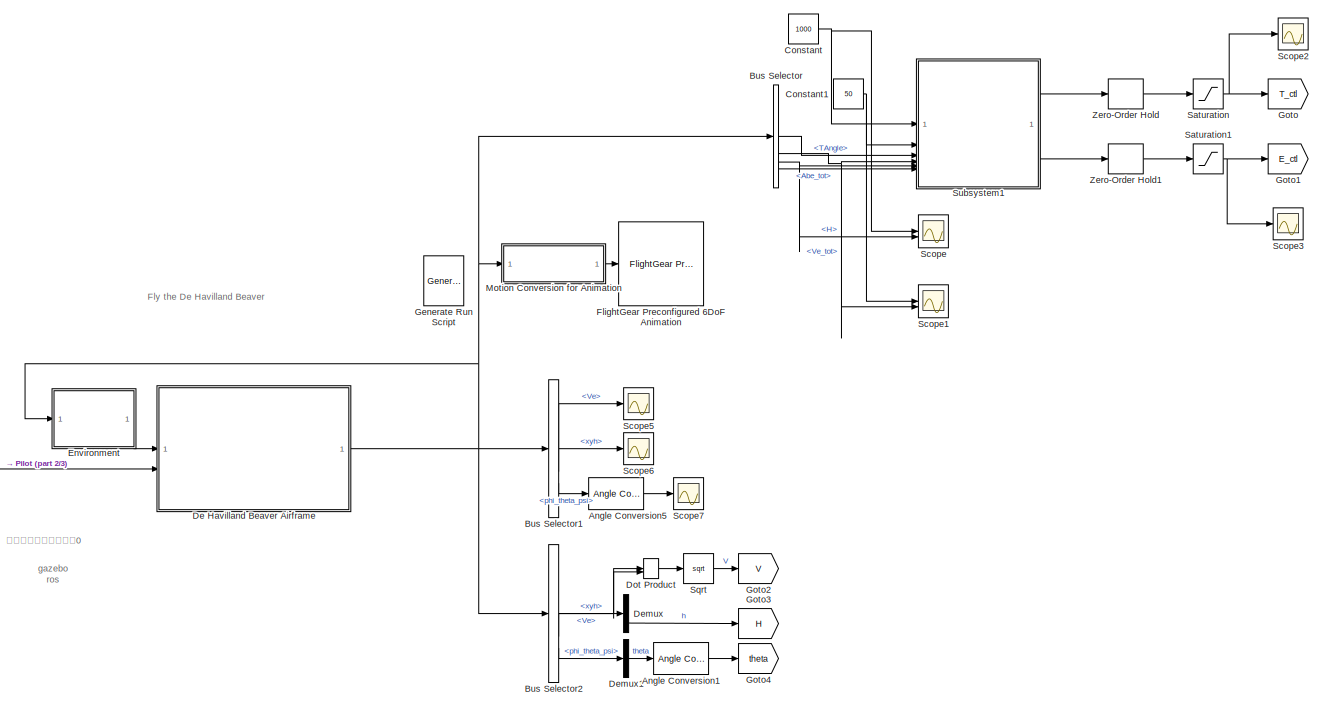
[diagram: root canvas - part 1/3, top right region]
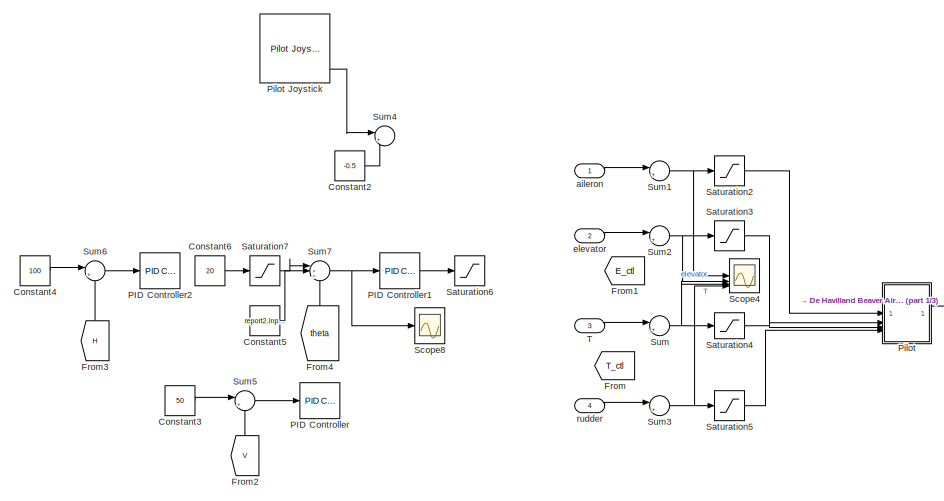
[diagram: root canvas - part 2/3, middle left region]
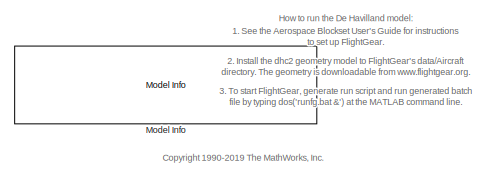
[diagram: root canvas - part 3/3, bottom center region]
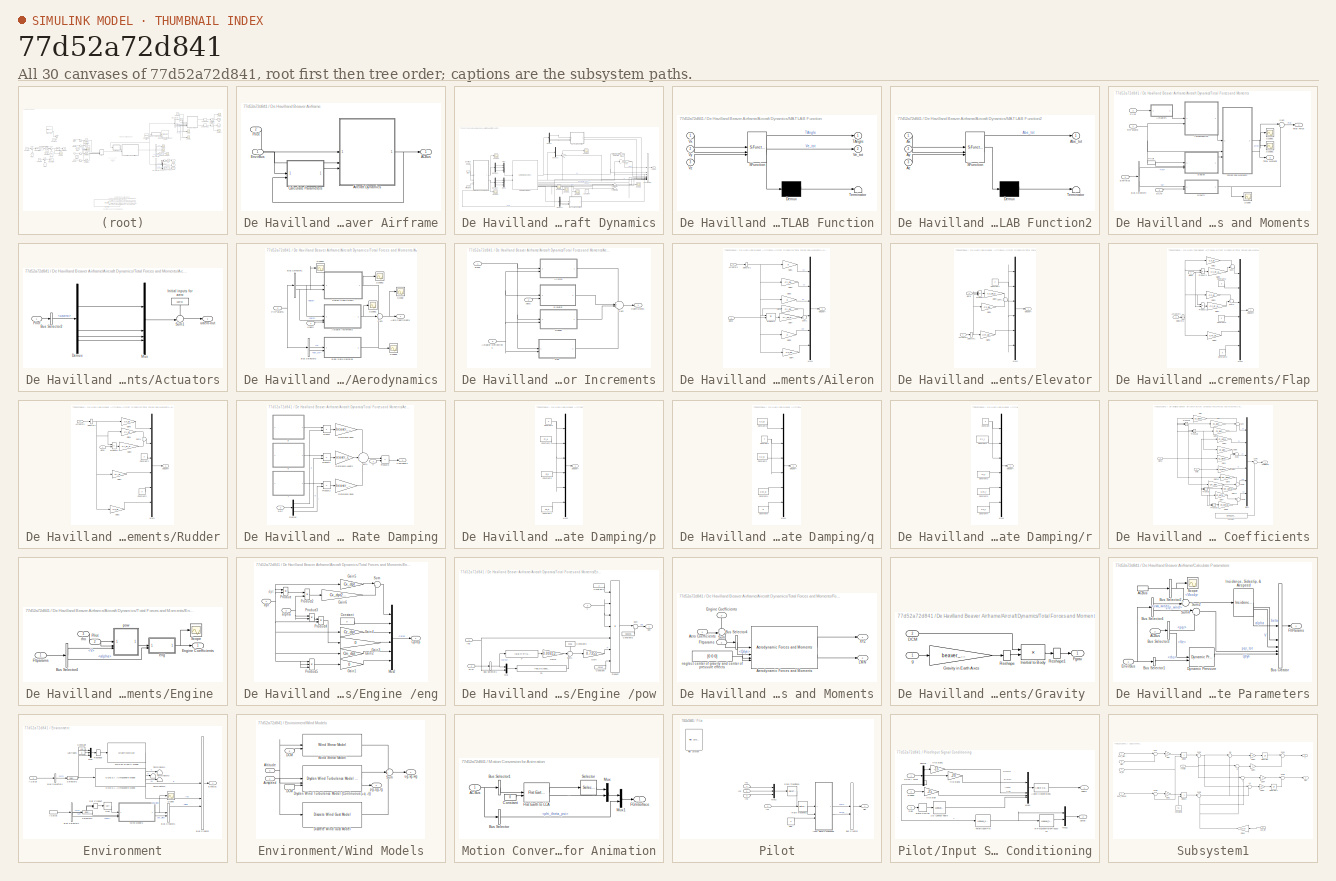
[diagram: thumbnail index - all 30 canvases of the model, root first then tree order]
MODEL slx_77d52a72d841
KIND model
CONFIG AbsTol = 1e-3
CONFIG EnableMultiTasking = on
CONFIG FixedStep = auto
CONFIG MaxStep = 1/30
CONFIG MinStep = auto
CONFIG PreLoadFcn = load asbdhc2_init;\n\n
CONFIG RelTol = 1e-2
CONFIG SampleTimeConstraint = Unconstrained
CONFIG SolverName = ode23
CONFIG StartTime = 0.0
CONFIG StopTime = 100
WORKSPACE source: mxarray member
WORKSPACE op_trim1: opcond.OperatingReport (value not decoded)
WORKSPACE op_trim2: opcond.OperatingReport (value not decoded)
WORKSPACE op_trim3: opcond.OperatingReport (value not decoded)
BLOCK [Reference] Angle Conversion1  REF=aerolibconvert2/Angle Conversion
  SourceBlock = aerolibconvert2/Angle Conversion
  SourceType = Angle Conversion
BLOCK [Reference] Angle Conversion5  REF=aerolibconvert2/Angle Conversion
  SourceBlock = aerolibconvert2/Angle Conversion
  SourceType = Angle Conversion
BLOCK [BusSelector] Bus Selector
  OutputSignals = TAngle,Ve_tot,H,Abe_tot
BLOCK [BusSelector] Bus Selector1
  OutputSignals = Ve,xyh,phi_theta_psi
BLOCK [BusSelector] Bus Selector2
  OutputSignals = Ve,xyh,phi_theta_psi
BLOCK [Constant] Constant
  Value = 1000
BLOCK [Constant] Constant1
  Value = 50
BLOCK [Constant] Constant2
  Value = -0.5
BLOCK [Constant] Constant3
  Value = 50
BLOCK [Constant] Constant4
  Value = 100
BLOCK [Constant] Constant5
  Value = report2.Inputs(2, 1).u
BLOCK [Constant] Constant6
  Value = 20
BLOCK [SubSystem] De Havilland Beaver Airframe
BLOCK [Outport] De Havilland Beaver Airframe/ACBus
  VectorParamsAs1DForOutWhenUnconnected = off
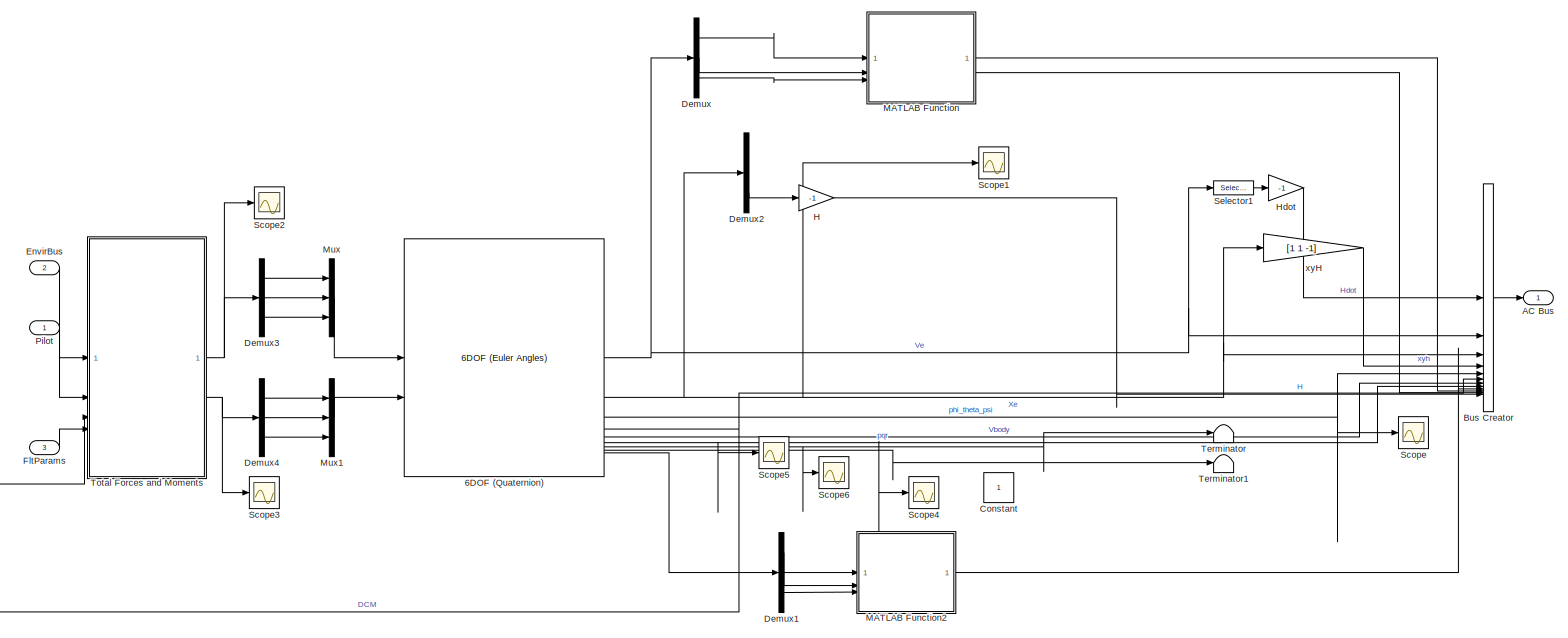
[diagram: De Havilland Beaver Airframe/Aircraft Dynamics - part 1/1, most of the canvas]
BLOCK [SubSystem] De Havilland Beaver Airframe/Aircraft Dynamics
BLOCK [Reference] De Havilland Beaver Airframe/Aircraft Dynamics/6DOF (Quaternion)  REF=shared6dof/6DOF (Euler Angles)
  SourceBlock = shared6dof/6DOF (Euler Angles)
  SourceType = 6DOF EoM (Body Axis)
BLOCK [Outport] De Havilland Beaver Airframe/Aircraft Dynamics/AC Bus
  VectorParamsAs1DForOutWhenUnconnected = off
BLOCK [BusCreator] De Havilland Beaver Airframe/Aircraft Dynamics/Bus Creator
  DisplayOption = bar
  InheritFromInputs = on
  Inputs = 12
BLOCK [Constant] De Havilland Beaver Airframe/Aircraft Dynamics/Constant
BLOCK [Demux] De Havilland Beaver Airframe/Aircraft Dynamics/Demux
  Outputs = 3
BLOCK [Demux] De Havilland Beaver Airframe/Aircraft Dynamics/Demux1
  Outputs = 3
BLOCK [Demux] De Havilland Beaver Airframe/Aircraft Dynamics/Demux2
  Outputs = 3
BLOCK [Demux] De Havilland Beaver Airframe/Aircraft Dynamics/Demux3
  Outputs = 3
BLOCK [Demux] De Havilland Beaver Airframe/Aircraft Dynamics/Demux4
  Outputs = 3
BLOCK [Inport] De Havilland Beaver Airframe/Aircraft Dynamics/EnvirBus
  Port = 2
BLOCK [Inport] De Havilland Beaver Airframe/Aircraft Dynamics/FltParams
  Port = 3
BLOCK [Gain] De Havilland Beaver Airframe/Aircraft Dynamics/H
  Gain = -1
  NameLocation = top
  OutDataTypeStr = Inherit: Same as input
  ParamDataTypeStr = Inherit: Same as input
  SaturateOnIntegerOverflow = on
BLOCK [Gain] De Havilland Beaver Airframe/Aircraft Dynamics/Hdot
  Gain = -1
  NameLocation = top
  OutDataTypeStr = Inherit: Same as input
  ParamDataTypeStr = Inherit: Same as input
  SaturateOnIntegerOverflow = on
BLOCK [SubSystem] De Havilland Beaver Airframe/Aircraft Dynamics/MATLAB Function
  ErrorFcn = Stateflow.Translate.translate
  LibrarySourceBlock = simulink/User-Defined\nFunctions/MATLAB Function
  PermitHierarchicalResolution = ExplicitOnly
  SFBlockType = MATLAB Function
  TreatAsAtomicUnit = on
BLOCK [Demux] De Havilland Beaver Airframe/Aircraft Dynamics/MATLAB Function/ Demux 
  Outputs = 1
BLOCK [S-Function] De Havilland Beaver Airframe/Aircraft Dynamics/MATLAB Function/ SFunction 
  EnableBusSupport = on
  FunctionName = sf_sfun
  PortCounts = [3 3]
  SFcnIsStateOwnerBlock = off
  SFunctionDeploymentMode = off
  Tag = Stateflow S-Function 2
BLOCK [Terminator] De Havilland Beaver Airframe/Aircraft Dynamics/MATLAB Function/ Terminator 
BLOCK [Outport] De Havilland Beaver Airframe/Aircraft Dynamics/MATLAB Function/TAngle
BLOCK [Outport] De Havilland Beaver Airframe/Aircraft Dynamics/MATLAB Function/Ve_tot
  Port = 2
BLOCK [Inport] De Havilland Beaver Airframe/Aircraft Dynamics/MATLAB Function/Vx
BLOCK [Inport] De Havilland Beaver Airframe/Aircraft Dynamics/MATLAB Function/Vy
  Port = 2
BLOCK [Inport] De Havilland Beaver Airframe/Aircraft Dynamics/MATLAB Function/Vz
  Port = 3
BLOCK [SubSystem] De Havilland Beaver Airframe/Aircraft Dynamics/MATLAB Function2
  ErrorFcn = Stateflow.Translate.translate
  LibrarySourceBlock = simulink/User-Defined\nFunctions/MATLAB Function
  PermitHierarchicalResolution = ExplicitOnly
  SFBlockType = MATLAB Function
  TreatAsAtomicUnit = on
BLOCK [Demux] De Havilland Beaver Airframe/Aircraft Dynamics/MATLAB Function2/ Demux 
  Outputs = 1
BLOCK [S-Function] De Havilland Beaver Airframe/Aircraft Dynamics/MATLAB Function2/ SFunction 
  EnableBusSupport = on
  FunctionName = sf_sfun
  PortCounts = [3 2]
  SFcnIsStateOwnerBlock = off
  SFunctionDeploymentMode = off
  Tag = Stateflow S-Function 8
BLOCK [Terminator] De Havilland Beaver Airframe/Aircraft Dynamics/MATLAB Function2/ Terminator 
BLOCK [Outport] De Havilland Beaver Airframe/Aircraft Dynamics/MATLAB Function2/Abe_tot
BLOCK [Inport] De Havilland Beaver Airframe/Aircraft Dynamics/MATLAB Function2/Ax
BLOCK [Inport] De Havilland Beaver Airframe/Aircraft Dynamics/MATLAB Function2/Ay
  Port = 2
BLOCK [Inport] De Havilland Beaver Airframe/Aircraft Dynamics/MATLAB Function2/Az
  Port = 3
BLOCK [Mux] De Havilland Beaver Airframe/Aircraft Dynamics/Mux
  DisplayOption = bar
  Inputs = 3
BLOCK [Mux] De Havilland Beaver Airframe/Aircraft Dynamics/Mux1
  DisplayOption = bar
  Inputs = 3
BLOCK [Inport] De Havilland Beaver Airframe/Aircraft Dynamics/Pilot
BLOCK [Scope] De Havilland Beaver Airframe/Aircraft Dynamics/Scope
  Floating = off
  NumInputPorts = 1
  ScopeSpecificationString = Simulink.scopes.TimeScopeBlockCfg('CurrentConfiguration', extmgr.ConfigurationSet(extmgr.Configuration('Core','General UI',true),extmgr.Configuration('Core','Source UI',true),extmgr.Configuration('Sources','WiredSimulink',true),extmgr.Configuration('Visuals','Time Domain',true,'SerializedDisplays',{struct('MinYLimReal','-0.46998','MaxYLimReal','0.12429','YLabelReal','','MinYLimMag','0.00000','MaxY...<+1502ch>
BLOCK [Scope] De Havilland Beaver Airframe/Aircraft Dynamics/Scope1
  Floating = off
  NumInputPorts = 1
  ScopeSpecificationString = Simulink.scopes.TimeScopeBlockCfg('CurrentConfiguration', extmgr.ConfigurationSet(extmgr.Configuration('Core','General UI',true),extmgr.Configuration('Core','Source UI',true),extmgr.Configuration('Sources','WiredSimulink',true,'DataLoggingVariableName','ScopeData3'),extmgr.Configuration('Visuals','Time Domain',true,'SerializedDisplays',{struct('MinYLimReal','-75.58065','MaxYLimReal','38.95217','YL...<+1466ch>
BLOCK [Scope] De Havilland Beaver Airframe/Aircraft Dynamics/Scope2
  Floating = off
  NumInputPorts = 1
  ScopeSpecificationString = Simulink.scopes.TimeScopeBlockCfg('CurrentConfiguration', extmgr.ConfigurationSet(extmgr.Configuration('Core','General UI',true),extmgr.Configuration('Core','Source UI',true),extmgr.Configuration('Sources','WiredSimulink',true,'DataLoggingVariableName','ScopeData1'),extmgr.Configuration('Visuals','Time Domain',true,'SerializedDisplays',{struct('MinYLimReal','-0.00581','MaxYLimReal','0.00188','YLab...<+1529ch>
BLOCK [Scope] De Havilland Beaver Airframe/Aircraft Dynamics/Scope3
  Floating = off
  NumInputPorts = 1
  ScopeSpecificationString = Simulink.scopes.TimeScopeBlockCfg('CurrentConfiguration', extmgr.ConfigurationSet(extmgr.Configuration('Core','General UI',true),extmgr.Configuration('Core','Source UI',true),extmgr.Configuration('Sources','WiredSimulink',true,'DataLoggingVariableName','ScopeData2'),extmgr.Configuration('Visuals','Time Domain',true,'SerializedDisplays',{struct('MinYLimReal','-37.1458','MaxYLimReal','19.87534','YLa...<+1463ch>
BLOCK [Scope] De Havilland Beaver Airframe/Aircraft Dynamics/Scope4
  Floating = off
  NumInputPorts = 1
  ScopeSpecificationString = Simulink.scopes.TimeScopeBlockCfg('CurrentConfiguration', extmgr.ConfigurationSet(extmgr.Configuration('Core','General UI',true),extmgr.Configuration('Core','Source UI',true),extmgr.Configuration('Sources','WiredSimulink',true,'DataLoggingVariableName','ScopeData8'),extmgr.Configuration('Visuals','Time Domain',true,'SerializedDisplays',{struct('MinYLimReal','-0.19051','MaxYLimReal','-0.18993','YLa...<+1460ch>
BLOCK [Scope] De Havilland Beaver Airframe/Aircraft Dynamics/Scope5
  Floating = off
  NumInputPorts = 1
  ScopeSpecificationString = Simulink.scopes.TimeScopeBlockCfg('CurrentConfiguration', extmgr.ConfigurationSet(extmgr.Configuration('Core','General UI',true),extmgr.Configuration('Core','Source UI',true),extmgr.Configuration('Sources','WiredSimulink',true,'DataLoggingVariableName','ScopeData9'),extmgr.Configuration('Visuals','Time Domain',true),extmgr.Configuration('Tools','Plot Navigation',true),extmgr.Configuration('Tools',...<+40ch>
BLOCK [Scope] De Havilland Beaver Airframe/Aircraft Dynamics/Scope6
  Floating = off
  NumInputPorts = 1
  ScopeSpecificationString = Simulink.scopes.TimeScopeBlockCfg('CurrentConfiguration', extmgr.ConfigurationSet(extmgr.Configuration('Core','General UI',true),extmgr.Configuration('Core','Source UI',true),extmgr.Configuration('Sources','WiredSimulink',true,'DataLoggingVariableName','ScopeData10'),extmgr.Configuration('Visuals','Time Domain',true,'SerializedDisplays',{struct('MinYLimReal','-0.04155','MaxYLimReal','0.08142','YLa...<+1571ch>
BLOCK [Selector] De Havilland Beaver Airframe/Aircraft Dynamics/Selector1
  IndexMode = Zero-based
  IndexOptions = Index vector (dialog)
  Indices = 2
  InputPortWidth = 3
  OutputSizes = 1
BLOCK [Terminator] De Havilland Beaver Airframe/Aircraft Dynamics/Terminator
BLOCK [Terminator] De Havilland Beaver Airframe/Aircraft Dynamics/Terminator1
BLOCK [SubSystem] De Havilland Beaver Airframe/Aircraft Dynamics/Total Forces and Moments
  NameLocation = top
BLOCK [SubSystem] De Havilland Beaver Airframe/Aircraft Dynamics/Total Forces and Moments/Actuators
BLOCK [BusSelector] De Havilland Beaver Airframe/Aircraft Dynamics/Total Forces and Moments/Actuators/Bus Selector2
  OutputSignals = uaero
BLOCK [Demux] De Havilland Beaver Airframe/Aircraft Dynamics/Total Forces and Moments/Actuators/Demux
BLOCK [Constant] De Havilland Beaver Airframe/Aircraft Dynamics/Total Forces and Moments/Actuators/Initial inputs for aero
  Commented = on
  NameLocation = left
  Value = uaero0
BLOCK [Mux] De Havilland Beaver Airframe/Aircraft Dynamics/Total Forces and Moments/Actuators/Mux
  DisplayOption = bar
BLOCK [Inport] De Havilland Beaver Airframe/Aircraft Dynamics/Total Forces and Moments/Actuators/Pilot
BLOCK [Sum] De Havilland Beaver Airframe/Aircraft Dynamics/Total Forces and Moments/Actuators/Sum1
  InputSameDT = on
  Inputs = ++|
  OutDataTypeStr = Inherit: Same as first input
  SaturateOnIntegerOverflow = on
BLOCK [Outport] De Havilland Beaver Airframe/Aircraft Dynamics/Total Forces and Moments/Actuators/uaero-out
  Unit = rad
  VectorParamsAs1DForOutWhenUnconnected = off
BLOCK [SubSystem] De Havilland Beaver Airframe/Aircraft Dynamics/Total Forces and Moments/Aerodynamics
BLOCK [SubSystem] De Havilland Beaver Airframe/Aircraft Dynamics/Total Forces and Moments/Aerodynamics/Actuator Increments
BLOCK [Inport] De Havilland Beaver Airframe/Aircraft Dynamics/Total Forces and Moments/Aerodynamics/Actuator Increments/Actuator Deflections
  Port = 3
  Unit = rad
BLOCK [SubSystem] De Havilland Beaver Airframe/Aircraft Dynamics/Total Forces and Moments/Aerodynamics/Actuator Increments/Aileron
BLOCK [Inport] De Havilland Beaver Airframe/Aircraft Dynamics/Total Forces and Moments/Aerodynamics/Actuator Increments/Aileron/Actuators
  Port = 2
  Unit = rad
BLOCK [Gain] De Havilland Beaver Airframe/Aircraft Dynamics/Total Forces and Moments/Aerodynamics/Actuator Increments/Aileron/Gain1
  Gain = 0
  OutDataTypeStr = Inherit: Same as input
  ParamDataTypeStr = Inherit: Same as input
  SaturateOnIntegerOverflow = on
BLOCK [Gain] De Havilland Beaver Airframe/Aircraft Dynamics/Total Forces and Moments/Aerodynamics/Actuator Increments/Aileron/Gain2
  Gain = Cy_da
  OutDataTypeStr = Inherit: Same as input
  ParamDataTypeStr = Inherit: Same as input
  SaturateOnIntegerOverflow = on
BLOCK [Gain] De Havilland Beaver Airframe/Aircraft Dynamics/Total Forces and Moments/Aerodynamics/Actuator Increments/Aileron/Gain3
  Gain = 0
  OutDataTypeStr = Inherit: Same as input
  ParamDataTypeStr = Inherit: Same as input
  SaturateOnIntegerOverflow = on
BLOCK [Gain] De Havilland Beaver Airframe/Aircraft Dynamics/Total Forces and Moments/Aerodynamics/Actuator Increments/Aileron/Gain4
  Gain = Cn_da
  OutDataTypeStr = Inherit: Same as input
  ParamDataTypeStr = Inherit: Same as input
  SaturateOnIntegerOverflow = on
BLOCK [Gain] De Havilland Beaver Airframe/Aircraft Dynamics/Total Forces and Moments/Aerodynamics/Actuator Increments/Aileron/Gain5
  Gain = 0
  OutDataTypeStr = Inherit: Same as input
  ParamDataTypeStr = Inherit: Same as input
  SaturateOnIntegerOverflow = on
BLOCK [Gain] De Havilland Beaver Airframe/Aircraft Dynamics/Total Forces and Moments/Aerodynamics/Actuator Increments/Aileron/Gain6
  Gain = Cl_da
  OutDataTypeStr = Inherit: Same as input
  ParamDataTypeStr = Inherit: Same as input
  SaturateOnIntegerOverflow = on
BLOCK [Gain] De Havilland Beaver Airframe/Aircraft Dynamics/Total Forces and Moments/Aerodynamics/Actuator Increments/Aileron/Gain7
  Gain = Cl_da_alpha
  OutDataTypeStr = Inherit: Same as input
  ParamDataTypeStr = Inherit: Same as input
  SaturateOnIntegerOverflow = on
BLOCK [Mux] De Havilland Beaver Airframe/Aircraft Dynamics/Total Forces and Moments/Aerodynamics/Actuator Increments/Aileron/Mux1
  Inputs = 6
BLOCK [Product] De Havilland Beaver Airframe/Aircraft Dynamics/Total Forces and Moments/Aerodynamics/Actuator Increments/Aileron/Product4
  InputSameDT = on
  OutDataTypeStr = Inherit: Same as first input
  SaturateOnIntegerOverflow = on
BLOCK [Selector] De Havilland Beaver Airframe/Aircraft Dynamics/Total Forces and Moments/Aerodynamics/Actuator Increments/Aileron/Selector1
  IndexMode = Zero-based
  IndexOptions = Index vector (dialog)
  Indices = 1
  InputPortWidth = 4
  OutputSizes = 1
BLOCK [Sum] De Havilland Beaver Airframe/Aircraft Dynamics/Total Forces and Moments/Aerodynamics/Actuator Increments/Aileron/Sum1
  Inputs = ++|
  SaturateOnIntegerOverflow = on
BLOCK [Inport] De Havilland Beaver Airframe/Aircraft Dynamics/Total Forces and Moments/Aerodynamics/Actuator Increments/Aileron/alpha
  Unit = rad
BLOCK [Outport] De Havilland Beaver Airframe/Aircraft Dynamics/Total Forces and Moments/Aerodynamics/Actuator Increments/Aileron/delCoeff
  VectorParamsAs1DForOutWhenUnconnected = off
BLOCK [Outport] De Havilland Beaver Airframe/Aircraft Dynamics/Total Forces and Moments/Aerodynamics/Actuator Increments/Coefficients
  VectorParamsAs1DForOutWhenUnconnected = off
BLOCK [SubSystem] De Havilland Beaver Airframe/Aircraft Dynamics/Total Forces and Moments/Aerodynamics/Actuator Increments/Elevator
BLOCK [Inport] De Havilland Beaver Airframe/Aircraft Dynamics/Total Forces and Moments/Aerodynamics/Actuator Increments/Elevator/Actuators
BLOCK [Inport] De Havilland Beaver Airframe/Aircraft Dynamics/Total Forces and Moments/Aerodynamics/Actuator Increments/Elevator/Beta
  Port = 2
  Unit = rad
BLOCK [Constant] De Havilland Beaver Airframe/Aircraft Dynamics/Total Forces and Moments/Aerodynamics/Actuator Increments/Elevator/Constant1
  Value = 0
BLOCK [Gain] De Havilland Beaver Airframe/Aircraft Dynamics/Total Forces and Moments/Aerodynamics/Actuator Increments/Elevator/Gain1
  Gain = Cz_de
  OutDataTypeStr = Inherit: Same as input
  ParamDataTypeStr = Inherit: Same as input
  SaturateOnIntegerOverflow = on
BLOCK [Gain] De Havilland Beaver Airframe/Aircraft Dynamics/Total Forces and Moments/Aerodynamics/Actuator Increments/Elevator/Gain2
  Gain = Cz_de_beta
  OutDataTypeStr = Inherit: Same as input
  ParamDataTypeStr = Inherit: Same as input
  SaturateOnIntegerOverflow = on
BLOCK [Gain] De Havilland Beaver Airframe/Aircraft Dynamics/Total Forces and Moments/Aerodynamics/Actuator Increments/Elevator/Gain3
  Gain = Cm_de
  OutDataTypeStr = Inherit: Same as input
  ParamDataTypeStr = Inherit: Same as input
  SaturateOnIntegerOverflow = on
BLOCK [Mux] De Havilland Beaver Airframe/Aircraft Dynamics/Total Forces and Moments/Aerodynamics/Actuator Increments/Elevator/Mux1
  Inputs = 6
BLOCK [Product] De Havilland Beaver Airframe/Aircraft Dynamics/Total Forces and Moments/Aerodynamics/Actuator Increments/Elevator/Product4
  InputSameDT = on
  Inputs = 3
  OutDataTypeStr = Inherit: Same as first input
  SaturateOnIntegerOverflow = on
BLOCK [Selector] De Havilland Beaver Airframe/Aircraft Dynamics/Total Forces and Moments/Aerodynamics/Actuator Increments/Elevator/Selector1
  IndexMode = Zero-based
  IndexOptions = Index vector (dialog)
  Indices = 0
  InputPortWidth = 4
  OutputSizes = 1
BLOCK [Sum] De Havilland Beaver Airframe/Aircraft Dynamics/Total Forces and Moments/Aerodynamics/Actuator Increments/Elevator/Sum1
  SaturateOnIntegerOverflow = on
BLOCK [Outport] De Havilland Beaver Airframe/Aircraft Dynamics/Total Forces and Moments/Aerodynamics/Actuator Increments/Elevator/delCoeff
  VectorParamsAs1DForOutWhenUnconnected = off
BLOCK [SubSystem] De Havilland Beaver Airframe/Aircraft Dynamics/Total Forces and Moments/Aerodynamics/Actuator Increments/Flap
BLOCK [Inport] De Havilland Beaver Airframe/Aircraft Dynamics/Total Forces and Moments/Aerodynamics/Actuator Increments/Flap/Actuators
  Port = 2
  Unit = rad
BLOCK [Inport] De Havilland Beaver Airframe/Aircraft Dynamics/Total Forces and Moments/Aerodynamics/Actuator Increments/Flap/Alpha
  Unit = rad
BLOCK [Constant] De Havilland Beaver Airframe/Aircraft Dynamics/Total Forces and Moments/Aerodynamics/Actuator Increments/Flap/Constant1
  Value = 0
BLOCK [Constant] De Havilland Beaver Airframe/Aircraft Dynamics/Total Forces and Moments/Aerodynamics/Actuator Increments/Flap/Constant2
  Value = 0
BLOCK [Constant] De Havilland Beaver Airframe/Aircraft Dynamics/Total Forces and Moments/Aerodynamics/Actuator Increments/Flap/Constant3
  Value = 0
BLOCK [Gain] De Havilland Beaver Airframe/Aircraft Dynamics/Total Forces and Moments/Aerodynamics/Actuator Increments/Flap/Gain1
  Gain = Cx_df
  OutDataTypeStr = Inherit: Same as input
  ParamDataTypeStr = Inherit: Same as input
  SaturateOnIntegerOverflow = on
BLOCK [Gain] De Havilland Beaver Airframe/Aircraft Dynamics/Total Forces and Moments/Aerodynamics/Actuator Increments/Flap/Gain2
  Gain = Cx_df_alpha
  OutDataTypeStr = Inherit: Same as input
  ParamDataTypeStr = Inherit: Same as input
  SaturateOnIntegerOverflow = on
BLOCK [Gain] De Havilland Beaver Airframe/Aircraft Dynamics/Total Forces and Moments/Aerodynamics/Actuator Increments/Flap/Gain3
  Gain = Cz_df
  OutDataTypeStr = Inherit: Same as input
  ParamDataTypeStr = Inherit: Same as input
  SaturateOnIntegerOverflow = on
BLOCK [Gain] De Havilland Beaver Airframe/Aircraft Dynamics/Total Forces and Moments/Aerodynamics/Actuator Increments/Flap/Gain4
  Gain = Cz_df_alpha
  OutDataTypeStr = Inherit: Same as input
  ParamDataTypeStr = Inherit: Same as input
  SaturateOnIntegerOverflow = on
BLOCK [Gain] De Havilland Beaver Airframe/Aircraft Dynamics/Total Forces and Moments/Aerodynamics/Actuator Increments/Flap/Gain5
  Gain = Cm_df
  OutDataTypeStr = Inherit: Same as input
  ParamDataTypeStr = Inherit: Same as input
  SaturateOnIntegerOverflow = on
BLOCK [Mux] De Havilland Beaver Airframe/Aircraft Dynamics/Total Forces and Moments/Aerodynamics/Actuator Increments/Flap/Mux1
  Inputs = 6
BLOCK [Product] De Havilland Beaver Airframe/Aircraft Dynamics/Total Forces and Moments/Aerodynamics/Actuator Increments/Flap/Product1
  InputSameDT = on
  OutDataTypeStr = Inherit: Same as first input
  SaturateOnIntegerOverflow = on
BLOCK [Product] De Havilland Beaver Airframe/Aircraft Dynamics/Total Forces and Moments/Aerodynamics/Actuator Increments/Flap/Product4
  InputSameDT = on
  OutDataTypeStr = Inherit: Same as first input
  SaturateOnIntegerOverflow = on
BLOCK [Selector] De Havilland Beaver Airframe/Aircraft Dynamics/Total Forces and Moments/Aerodynamics/Actuator Increments/Flap/Selector1
  IndexMode = Zero-based
  IndexOptions = Index vector (dialog)
  Indices = 3
  InputPortWidth = 4
  OutputSizes = 1
BLOCK [Sum] De Havilland Beaver Airframe/Aircraft Dynamics/Total Forces and Moments/Aerodynamics/Actuator Increments/Flap/Sum1
  SaturateOnIntegerOverflow = on
BLOCK [Sum] De Havilland Beaver Airframe/Aircraft Dynamics/Total Forces and Moments/Aerodynamics/Actuator Increments/Flap/Sum2
  SaturateOnIntegerOverflow = on
BLOCK [Outport] De Havilland Beaver Airframe/Aircraft Dynamics/Total Forces and Moments/Aerodynamics/Actuator Increments/Flap/delCoeff
  VectorParamsAs1DForOutWhenUnconnected = off
BLOCK [SubSystem] De Havilland Beaver Airframe/Aircraft Dynamics/Total Forces and Moments/Aerodynamics/Actuator Increments/Rudder
BLOCK [Inport] De Havilland Beaver Airframe/Aircraft Dynamics/Total Forces and Moments/Aerodynamics/Actuator Increments/Rudder/Actuators
  Port = 2
  Unit = rad
BLOCK [Inport] De Havilland Beaver Airframe/Aircraft Dynamics/Total Forces and Moments/Aerodynamics/Actuator Increments/Rudder/Alpha
  NameLocation = top
  Unit = rad
BLOCK [Constant] De Havilland Beaver Airframe/Aircraft Dynamics/Total Forces and Moments/Aerodynamics/Actuator Increments/Rudder/Constant1
  Value = 0
BLOCK [Constant] De Havilland Beaver Airframe/Aircraft Dynamics/Total Forces and Moments/Aerodynamics/Actuator Increments/Rudder/Constant2
  Value = 0
BLOCK [Gain] De Havilland Beaver Airframe/Aircraft Dynamics/Total Forces and Moments/Aerodynamics/Actuator Increments/Rudder/Gain1
  Gain = Cl_dr
  OutDataTypeStr = Inherit: Same as input
  ParamDataTypeStr = Inherit: Same as input
  SaturateOnIntegerOverflow = on
BLOCK [Gain] De Havilland Beaver Airframe/Aircraft Dynamics/Total Forces and Moments/Aerodynamics/Actuator Increments/Rudder/Gain2
  Gain = Cn_dr
  OutDataTypeStr = Inherit: Same as input
  ParamDataTypeStr = Inherit: Same as input
  SaturateOnIntegerOverflow = on
BLOCK [Gain] De Havilland Beaver Airframe/Aircraft Dynamics/Total Forces and Moments/Aerodynamics/Actuator Increments/Rudder/Gain3
  Gain = Cy_dr_alpha
  OutDataTypeStr = Inherit: Same as input
  ParamDataTypeStr = Inherit: Same as input
  SaturateOnIntegerOverflow = on
BLOCK [Gain] De Havilland Beaver Airframe/Aircraft Dynamics/Total Forces and Moments/Aerodynamics/Actuator Increments/Rudder/Gain4
  Gain = Cy_dr
  OutDataTypeStr = Inherit: Same as input
  ParamDataTypeStr = Inherit: Same as input
  SaturateOnIntegerOverflow = on
BLOCK [Gain] De Havilland Beaver Airframe/Aircraft Dynamics/Total Forces and Moments/Aerodynamics/Actuator Increments/Rudder/Gain5
  Gain = Cx_dr
  OutDataTypeStr = Inherit: Same as input
  ParamDataTypeStr = Inherit: Same as input
  SaturateOnIntegerOverflow = on
BLOCK [Mux] De Havilland Beaver Airframe/Aircraft Dynamics/Total Forces and Moments/Aerodynamics/Actuator Increments/Rudder/Mux1
  Inputs = 6
BLOCK [Product] De Havilland Beaver Airframe/Aircraft Dynamics/Total Forces and Moments/Aerodynamics/Actuator Increments/Rudder/Product1
  InputSameDT = on
  OutDataTypeStr = Inherit: Same as first input
  SaturateOnIntegerOverflow = on
BLOCK [Selector] De Havilland Beaver Airframe/Aircraft Dynamics/Total Forces and Moments/Aerodynamics/Actuator Increments/Rudder/Selector1
  IndexMode = Zero-based
  IndexOptions = Index vector (dialog)
  Indices = 2
  InputPortWidth = 4
  OutputSizes = 1
BLOCK [Sum] De Havilland Beaver Airframe/Aircraft Dynamics/Total Forces and Moments/Aerodynamics/Actuator Increments/Rudder/Sum1
  SaturateOnIntegerOverflow = on
BLOCK [Outport] De Havilland Beaver Airframe/Aircraft Dynamics/Total Forces and Moments/Aerodynamics/Actuator Increments/Rudder/delCoeff
  VectorParamsAs1DForOutWhenUnconnected = off
BLOCK [Sum] De Havilland Beaver Airframe/Aircraft Dynamics/Total Forces and Moments/Aerodynamics/Actuator Increments/Sum
  InputSameDT = on
  Inputs = ++++
  OutDataTypeStr = Inherit: Same as first input
  SaturateOnIntegerOverflow = on
BLOCK [Inport] De Havilland Beaver Airframe/Aircraft Dynamics/Total Forces and Moments/Aerodynamics/Actuator Increments/alpha
  Unit = rad
BLOCK [Inport] De Havilland Beaver Airframe/Aircraft Dynamics/Total Forces and Moments/Aerodynamics/Actuator Increments/beta
  Port = 2
  Unit = rad
BLOCK [Outport] De Havilland Beaver Airframe/Aircraft Dynamics/Total Forces and Moments/Aerodynamics/Aero Coefficients
  VectorParamsAs1DForOutWhenUnconnected = off
BLOCK [SubSystem] De Havilland Beaver Airframe/Aircraft Dynamics/Total Forces and Moments/Aerodynamics/Body Rate Damping
BLOCK [Outport] De Havilland Beaver Airframe/Aircraft Dynamics/Total Forces and Moments/Aerodynamics/Body Rate Damping/Coefficients
  VectorParamsAs1DForOutWhenUnconnected = off
BLOCK [Demux] De Havilland Beaver Airframe/Aircraft Dynamics/Total Forces and Moments/Aerodynamics/Body Rate Damping/Demux
  DisplayOption = none
  Outputs = 3
BLOCK [Product] De Havilland Beaver Airframe/Aircraft Dynamics/Total Forces and Moments/Aerodynamics/Body Rate Damping/Product
  InputSameDT = on
  OutDataTypeStr = Inherit: Same as first input
  SaturateOnIntegerOverflow = on
BLOCK [Product] De Havilland Beaver Airframe/Aircraft Dynamics/Total Forces and Moments/Aerodynamics/Body Rate Damping/Product1
  InputSameDT = on
  OutDataTypeStr = Inherit: Same as first input
  SaturateOnIntegerOverflow = on
BLOCK [Product] De Havilland Beaver Airframe/Aircraft Dynamics/Total Forces and Moments/Aerodynamics/Body Rate Damping/Product2
  InputSameDT = on
  OutDataTypeStr = Inherit: Same as first input
  SaturateOnIntegerOverflow = on
BLOCK [Product] De Havilland Beaver Airframe/Aircraft Dynamics/Total Forces and Moments/Aerodynamics/Body Rate Damping/Product3
  InputSameDT = on
  Inputs = */
  OutDataTypeStr = Inherit: Same as first input
  SaturateOnIntegerOverflow = on
BLOCK [Gain] De Havilland Beaver Airframe/Aircraft Dynamics/Total Forces and Moments/Aerodynamics/Body Rate Damping/Reference Length
  Gain = beaver_c
  OutDataTypeStr = Inherit: Same as input
  ParamDataTypeStr = Inherit: Same as input
  SaturateOnIntegerOverflow = on
BLOCK [Gain] De Havilland Beaver Airframe/Aircraft Dynamics/Total Forces and Moments/Aerodynamics/Body Rate Damping/Reference Span
  Gain = beaver_b/2
  OutDataTypeStr = Inherit: Same as input
  ParamDataTypeStr = Inherit: Same as input
  SaturateOnIntegerOverflow = on
BLOCK [Gain] De Havilland Beaver Airframe/Aircraft Dynamics/Total Forces and Moments/Aerodynamics/Body Rate Damping/Reference Span 
  Gain = beaver_b/2
  OutDataTypeStr = Inherit: Same as input
  ParamDataTypeStr = Inherit: Same as input
  SaturateOnIntegerOverflow = on
BLOCK [Sum] De Havilland Beaver Airframe/Aircraft Dynamics/Total Forces and Moments/Aerodynamics/Body Rate Damping/Sum1
  InputSameDT = on
  Inputs = +++
  OutDataTypeStr = Inherit: Same as first input
  SaturateOnIntegerOverflow = on
BLOCK [Inport] De Havilland Beaver Airframe/Aircraft Dynamics/Total Forces and Moments/Aerodynamics/Body Rate Damping/V
  Unit = m/second
BLOCK [SubSystem] De Havilland Beaver Airframe/Aircraft Dynamics/Total Forces and Moments/Aerodynamics/Body Rate Damping/p
BLOCK [Inport] De Havilland Beaver Airframe/Aircraft Dynamics/Total Forces and Moments/Aerodynamics/Body Rate Damping/p,q,r
  Port = 2
  Unit = rad/second
BLOCK [Constant] De Havilland Beaver Airframe/Aircraft Dynamics/Total Forces and Moments/Aerodynamics/Body Rate Damping/p/Constant1
  Value = 0
BLOCK [Constant] De Havilland Beaver Airframe/Aircraft Dynamics/Total Forces and Moments/Aerodynamics/Body Rate Damping/p/Constant2
  Value = Cy_p
BLOCK [Constant] De Havilland Beaver Airframe/Aircraft Dynamics/Total Forces and Moments/Aerodynamics/Body Rate Damping/p/Constant3
  Value = Cl_p
BLOCK [Constant] De Havilland Beaver Airframe/Aircraft Dynamics/Total Forces and Moments/Aerodynamics/Body Rate Damping/p/Constant4
  Value = Cn_p
BLOCK [Mux] De Havilland Beaver Airframe/Aircraft Dynamics/Total Forces and Moments/Aerodynamics/Body Rate Damping/p/Mux1
  Inputs = 6
BLOCK [Outport] De Havilland Beaver Airframe/Aircraft Dynamics/Total Forces and Moments/Aerodynamics/Body Rate Damping/p/delCoeff
  VectorParamsAs1DForOutWhenUnconnected = off
BLOCK [SubSystem] De Havilland Beaver Airframe/Aircraft Dynamics/Total Forces and Moments/Aerodynamics/Body Rate Damping/q
BLOCK [Constant] De Havilland Beaver Airframe/Aircraft Dynamics/Total Forces and Moments/Aerodynamics/Body Rate Damping/q/Constant1
  Value = 0
BLOCK [Constant] De Havilland Beaver Airframe/Aircraft Dynamics/Total Forces and Moments/Aerodynamics/Body Rate Damping/q/Constant2
  Value = Cz_q
BLOCK [Constant] De Havilland Beaver Airframe/Aircraft Dynamics/Total Forces and Moments/Aerodynamics/Body Rate Damping/q/Constant3
  Value = Cx_q
BLOCK [Constant] De Havilland Beaver Airframe/Aircraft Dynamics/Total Forces and Moments/Aerodynamics/Body Rate Damping/q/Constant4
  Value = Cm_q
BLOCK [Constant] De Havilland Beaver Airframe/Aircraft Dynamics/Total Forces and Moments/Aerodynamics/Body Rate Damping/q/Constant5
  Value = 0
BLOCK [Mux] De Havilland Beaver Airframe/Aircraft Dynamics/Total Forces and Moments/Aerodynamics/Body Rate Damping/q/Mux1
  Inputs = 6
BLOCK [Outport] De Havilland Beaver Airframe/Aircraft Dynamics/Total Forces and Moments/Aerodynamics/Body Rate Damping/q/delCoeff
  VectorParamsAs1DForOutWhenUnconnected = off
BLOCK [SubSystem] De Havilland Beaver Airframe/Aircraft Dynamics/Total Forces and Moments/Aerodynamics/Body Rate Damping/r
BLOCK [Constant] De Havilland Beaver Airframe/Aircraft Dynamics/Total Forces and Moments/Aerodynamics/Body Rate Damping/r/Constant
  Value = 0
BLOCK [Constant] De Havilland Beaver Airframe/Aircraft Dynamics/Total Forces and Moments/Aerodynamics/Body Rate Damping/r/Constant1
  Value = Cy_r
BLOCK [Constant] De Havilland Beaver Airframe/Aircraft Dynamics/Total Forces and Moments/Aerodynamics/Body Rate Damping/r/Constant2
  Value = Cl_r
BLOCK [Constant] De Havilland Beaver Airframe/Aircraft Dynamics/Total Forces and Moments/Aerodynamics/Body Rate Damping/r/Constant3
  Value = Cm_r
BLOCK [Constant] De Havilland Beaver Airframe/Aircraft Dynamics/Total Forces and Moments/Aerodynamics/Body Rate Damping/r/Constant4
  Value = Cn_r
BLOCK [Mux] De Havilland Beaver Airframe/Aircraft Dynamics/Total Forces and Moments/Aerodynamics/Body Rate Damping/r/Mux1
  Inputs = 6
BLOCK [Outport] De Havilland Beaver Airframe/Aircraft Dynamics/Total Forces and Moments/Aerodynamics/Body Rate Damping/r/delCoeff
  VectorParamsAs1DForOutWhenUnconnected = off
BLOCK [BusSelector] De Havilland Beaver Airframe/Aircraft Dynamics/Total Forces and Moments/Aerodynamics/Bus Selector1
  OutputSignals = alpha,beta
BLOCK [BusSelector] De Havilland Beaver Airframe/Aircraft Dynamics/Total Forces and Moments/Aerodynamics/Bus Selector2
  OutputSignals = V,pqr_tot
BLOCK [SubSystem] De Havilland Beaver Airframe/Aircraft Dynamics/Total Forces and Moments/Aerodynamics/Datum Coefficients
BLOCK [Outport] De Havilland Beaver Airframe/Aircraft Dynamics/Total Forces and Moments/Aerodynamics/Datum Coefficients/Coefficients
  VectorParamsAs1DForOutWhenUnconnected = off
BLOCK [Constant] De Havilland Beaver Airframe/Aircraft Dynamics/Total Forces and Moments/Aerodynamics/Datum Coefficients/Constant
  Value = [Cx0,0,Cz0,0,Cm0,0]
BLOCK [Gain] De Havilland Beaver Airframe/Aircraft Dynamics/Total Forces and Moments/Aerodynamics/Datum Coefficients/Gain
  Gain = Cx_alpha
  OutDataTypeStr = Inherit: Same as input
  ParamDataTypeStr = Inherit: Same as input
  SaturateOnIntegerOverflow = on
BLOCK [Gain] De Havilland Beaver Airframe/Aircraft Dynamics/Total Forces and Moments/Aerodynamics/Datum Coefficients/Gain1
  Gain = Cx_alpha2
  OutDataTypeStr = Inherit: Same as input
  ParamDataTypeStr = Inherit: Same as input
  SaturateOnIntegerOverflow = on
BLOCK [Gain] De Havilland Beaver Airframe/Aircraft Dynamics/Total Forces and Moments/Aerodynamics/Datum Coefficients/Gain10
  Gain = Cm_alpha2
  OutDataTypeStr = Inherit: Same as input
  ParamDataTypeStr = Inherit: Same as input
  SaturateOnIntegerOverflow = on
BLOCK [Gain] De Havilland Beaver Airframe/Aircraft Dynamics/Total Forces and Moments/Aerodynamics/Datum Coefficients/Gain11
  Gain = Cm_beta2
  OutDataTypeStr = Inherit: Same as input
  ParamDataTypeStr = Inherit: Same as input
  SaturateOnIntegerOverflow = on
BLOCK [Gain] De Havilland Beaver Airframe/Aircraft Dynamics/Total Forces and Moments/Aerodynamics/Datum Coefficients/Gain2
  Gain = Cx_alpha3
  OutDataTypeStr = Inherit: Same as input
  ParamDataTypeStr = Inherit: Same as input
  SaturateOnIntegerOverflow = on
BLOCK [Gain] De Havilland Beaver Airframe/Aircraft Dynamics/Total Forces and Moments/Aerodynamics/Datum Coefficients/Gain3
  Gain = Cy_beta
  OutDataTypeStr = Inherit: Same as input
  ParamDataTypeStr = Inherit: Same as input
  SaturateOnIntegerOverflow = on
BLOCK [Gain] De Havilland Beaver Airframe/Aircraft Dynamics/Total Forces and Moments/Aerodynamics/Datum Coefficients/Gain4
  Gain = Cz_alpha
  OutDataTypeStr = Inherit: Same as input
  ParamDataTypeStr = Inherit: Same as input
  SaturateOnIntegerOverflow = on
BLOCK [Gain] De Havilland Beaver Airframe/Aircraft Dynamics/Total Forces and Moments/Aerodynamics/Datum Coefficients/Gain5
  Gain = Cz_alpha3
  OutDataTypeStr = Inherit: Same as input
  ParamDataTypeStr = Inherit: Same as input
  SaturateOnIntegerOverflow = on
BLOCK [Gain] De Havilland Beaver Airframe/Aircraft Dynamics/Total Forces and Moments/Aerodynamics/Datum Coefficients/Gain6
  Gain = Cl_beta
  OutDataTypeStr = Inherit: Same as input
  ParamDataTypeStr = Inherit: Same as input
  SaturateOnIntegerOverflow = on
BLOCK [Gain] De Havilland Beaver Airframe/Aircraft Dynamics/Total Forces and Moments/Aerodynamics/Datum Coefficients/Gain7
  Gain = Cn_beta
  OutDataTypeStr = Inherit: Same as input
  ParamDataTypeStr = Inherit: Same as input
  SaturateOnIntegerOverflow = on
BLOCK [Gain] De Havilland Beaver Airframe/Aircraft Dynamics/Total Forces and Moments/Aerodynamics/Datum Coefficients/Gain8
  Gain = Cn_beta3
  OutDataTypeStr = Inherit: Same as input
  ParamDataTypeStr = Inherit: Same as input
  SaturateOnIntegerOverflow = on
BLOCK [Gain] De Havilland Beaver Airframe/Aircraft Dynamics/Total Forces and Moments/Aerodynamics/Datum Coefficients/Gain9
  Gain = Cm_alpha
  OutDataTypeStr = Inherit: Same as input
  ParamDataTypeStr = Inherit: Same as input
  SaturateOnIntegerOverflow = on
BLOCK [Mux] De Havilland Beaver Airframe/Aircraft Dynamics/Total Forces and Moments/Aerodynamics/Datum Coefficients/Mux1
  Inputs = 6
BLOCK [Product] De Havilland Beaver Airframe/Aircraft Dynamics/Total Forces and Moments/Aerodynamics/Datum Coefficients/Product1
  InputSameDT = on
  OutDataTypeStr = Inherit: Same as first input
  SaturateOnIntegerOverflow = on
BLOCK [Product] De Havilland Beaver Airframe/Aircraft Dynamics/Total Forces and Moments/Aerodynamics/Datum Coefficients/Product2
  InputSameDT = on
  OutDataTypeStr = Inherit: Same as first input
  SaturateOnIntegerOverflow = on
BLOCK [Product] De Havilland Beaver Airframe/Aircraft Dynamics/Total Forces and Moments/Aerodynamics/Datum Coefficients/Product3
  InputSameDT = on
  OutDataTypeStr = Inherit: Same as first input
  SaturateOnIntegerOverflow = on
BLOCK [Product] De Havilland Beaver Airframe/Aircraft Dynamics/Total Forces and Moments/Aerodynamics/Datum Coefficients/Product4
  InputSameDT = on
  OutDataTypeStr = Inherit: Same as first input
  SaturateOnIntegerOverflow = on
BLOCK [Sum] De Havilland Beaver Airframe/Aircraft Dynamics/Total Forces and Moments/Aerodynamics/Datum Coefficients/Sum
  Inputs = +++
  SaturateOnIntegerOverflow = on
BLOCK [Sum] De Havilland Beaver Airframe/Aircraft Dynamics/Total Forces and Moments/Aerodynamics/Datum Coefficients/Sum1
  SaturateOnIntegerOverflow = on
BLOCK [Sum] De Havilland Beaver Airframe/Aircraft Dynamics/Total Forces and Moments/Aerodynamics/Datum Coefficients/Sum2
  SaturateOnIntegerOverflow = on
BLOCK [Sum] De Havilland Beaver Airframe/Aircraft Dynamics/Total Forces and Moments/Aerodynamics/Datum Coefficients/Sum3
  Inputs = +++
  SaturateOnIntegerOverflow = on
BLOCK [Sum] De Havilland Beaver Airframe/Aircraft Dynamics/Total Forces and Moments/Aerodynamics/Datum Coefficients/Sum4
  Inputs = |++
  SaturateOnIntegerOverflow = on
BLOCK [Inport] De Havilland Beaver Airframe/Aircraft Dynamics/Total Forces and Moments/Aerodynamics/Datum Coefficients/alpha
  Unit = radian
BLOCK [Inport] De Havilland Beaver Airframe/Aircraft Dynamics/Total Forces and Moments/Aerodynamics/Datum Coefficients/beta
  Port = 2
  Unit = radian
BLOCK [Inport] De Havilland Beaver Airframe/Aircraft Dynamics/Total Forces and Moments/Aerodynamics/FltParams
  Port = 2
BLOCK [Scope] De Havilland Beaver Airframe/Aircraft Dynamics/Total Forces and Moments/Aerodynamics/Scope
  Floating = off
  NumInputPorts = 1
  ScopeSpecificationString = Simulink.scopes.TimeScopeBlockCfg('CurrentConfiguration', extmgr.ConfigurationSet(extmgr.Configuration('Core','General UI',true),extmgr.Configuration('Core','Source UI',true),extmgr.Configuration('Sources','WiredSimulink',true,'DataLoggingVariableName','ScopeData2'),extmgr.Configuration('Visuals','Time Domain',true,'SerializedDisplays',{struct('MinYLimReal','-0.49021','MaxYLimReal','0.09258','YLab...<+1595ch>
BLOCK [Scope] De Havilland Beaver Airframe/Aircraft Dynamics/Total Forces and Moments/Aerodynamics/Scope1
  Floating = off
  NumInputPorts = 1
  ScopeSpecificationString = Simulink.scopes.TimeScopeBlockCfg('CurrentConfiguration', extmgr.ConfigurationSet(extmgr.Configuration('Core','General UI',true),extmgr.Configuration('Core','Source UI',true),extmgr.Configuration('Sources','WiredSimulink',true,'DataLoggingVariableName','ScopeData3'),extmgr.Configuration('Visuals','Time Domain',true,'SerializedDisplays',{struct('MinYLimReal','-0.00463','MaxYLimReal','0.00533','YLab...<+1712ch>
BLOCK [Scope] De Havilland Beaver Airframe/Aircraft Dynamics/Total Forces and Moments/Aerodynamics/Scope2
  Floating = off
  NumInputPorts = 1
  ScopeSpecificationString = Simulink.scopes.TimeScopeBlockCfg('CurrentConfiguration', extmgr.ConfigurationSet(extmgr.Configuration('Core','General UI',true),extmgr.Configuration('Core','Source UI',true),extmgr.Configuration('Sources','WiredSimulink',true,'DataLoggingVariableName','ScopeData4'),extmgr.Configuration('Visuals','Time Domain',true,'SerializedDisplays',{struct('MinYLimReal','-0.47848','MaxYLimReal','0.14705','YLab...<+1549ch>
BLOCK [Scope] De Havilland Beaver Airframe/Aircraft Dynamics/Total Forces and Moments/Aerodynamics/Scope3
  Floating = off
  NumInputPorts = 1
  ScopeSpecificationString = Simulink.scopes.TimeScopeBlockCfg('CurrentConfiguration', extmgr.ConfigurationSet(extmgr.Configuration('Core','General UI',true),extmgr.Configuration('Core','Source UI',true),extmgr.Configuration('Sources','WiredSimulink',true,'DataLoggingVariableName','ScopeData5'),extmgr.Configuration('Visuals','Time Domain',true,'SerializedDisplays',{struct('MinYLimReal','-0.00579','MaxYLimReal','0.04778','YLab...<+1682ch>
BLOCK [Scope] De Havilland Beaver Airframe/Aircraft Dynamics/Total Forces and Moments/Aerodynamics/Scope4
  Floating = off
  NumInputPorts = 1
  ScopeSpecificationString = Simulink.scopes.TimeScopeBlockCfg('CurrentConfiguration', extmgr.ConfigurationSet(extmgr.Configuration('Core','General UI',true),extmgr.Configuration('Core','Source UI',true),extmgr.Configuration('Sources','WiredSimulink',true,'DataLoggingVariableName','ScopeData6'),extmgr.Configuration('Visuals','Time Domain',true,'SerializedDisplays',{struct('MinYLimReal','-0.01167','MaxYLimReal','-0.00797','YLa...<+1422ch>
BLOCK [Sum] De Havilland Beaver Airframe/Aircraft Dynamics/Total Forces and Moments/Aerodynamics/Sum
  Inputs = +++
  SaturateOnIntegerOverflow = on
BLOCK [Inport] De Havilland Beaver Airframe/Aircraft Dynamics/Total Forces and Moments/Aerodynamics/Uaero
  Unit = rad
BLOCK [BusSelector] De Havilland Beaver Airframe/Aircraft Dynamics/Total Forces and Moments/Bus Selector4
  OutputSignals = rho,g
BLOCK [Inport] De Havilland Beaver Airframe/Aircraft Dynamics/Total Forces and Moments/DCM
  Port = 3
BLOCK [SubSystem] De Havilland Beaver Airframe/Aircraft Dynamics/Total Forces and Moments/Engine 
BLOCK [BusSelector] De Havilland Beaver Airframe/Aircraft Dynamics/Total Forces and Moments/Engine /Bus Selector4
  OutputSignals = V,alpha
BLOCK [Outport] De Havilland Beaver Airframe/Aircraft Dynamics/Total Forces and Moments/Engine /Engine Coefficients
  VectorParamsAs1DForOutWhenUnconnected = off
BLOCK [Inport] De Havilland Beaver Airframe/Aircraft Dynamics/Total Forces and Moments/Engine /Fltparams
BLOCK [Inport] De Havilland Beaver Airframe/Aircraft Dynamics/Total Forces and Moments/Engine /Pilot
  Port = 2
BLOCK [Scope] De Havilland Beaver Airframe/Aircraft Dynamics/Total Forces and Moments/Engine /Scope
  Floating = off
  NumInputPorts = 1
  ScopeSpecificationString = Simulink.scopes.TimeScopeBlockCfg('CurrentConfiguration', extmgr.ConfigurationSet(extmgr.Configuration('Core','General UI',true),extmgr.Configuration('Core','Source UI',true),extmgr.Configuration('Sources','WiredSimulink',true,'DataLoggingVariableName','ScopeData1'),extmgr.Configuration('Visuals','Time Domain',true,'SerializedDisplays',{struct('MinYLimReal','-0.07402','MaxYLimReal','0.05984','YLab...<+1598ch>
BLOCK [SubSystem] De Havilland Beaver Airframe/Aircraft Dynamics/Total Forces and Moments/Engine /eng
BLOCK [Constant] De Havilland Beaver Airframe/Aircraft Dynamics/Total Forces and Moments/Engine /eng/Constant
  Value = 0
BLOCK [Outport] De Havilland Beaver Airframe/Aircraft Dynamics/Total Forces and Moments/Engine /eng/Cprop
  VectorParamsAs1DForOutWhenUnconnected = off
BLOCK [Gain] De Havilland Beaver Airframe/Aircraft Dynamics/Total Forces and Moments/Engine /eng/Gain1
  Gain = 0
  OutDataTypeStr = Inherit: Same as input
  ParamDataTypeStr = Inherit: Same as input
  SaturateOnIntegerOverflow = on
BLOCK [Gain] De Havilland Beaver Airframe/Aircraft Dynamics/Total Forces and Moments/Engine /eng/Gain2
  Gain = Cm_dpt
  OutDataTypeStr = Inherit: Same as input
  ParamDataTypeStr = Inherit: Same as input
  SaturateOnIntegerOverflow = on
BLOCK [Gain] De Havilland Beaver Airframe/Aircraft Dynamics/Total Forces and Moments/Engine /eng/Gain3
  Gain = 0
  OutDataTypeStr = Inherit: Same as input
  ParamDataTypeStr = Inherit: Same as input
  SaturateOnIntegerOverflow = on
BLOCK [Gain] De Havilland Beaver Airframe/Aircraft Dynamics/Total Forces and Moments/Engine /eng/Gain4
  Gain = Cz_dpt
  OutDataTypeStr = Inherit: Same as input
  ParamDataTypeStr = Inherit: Same as input
  SaturateOnIntegerOverflow = on
BLOCK [Gain] De Havilland Beaver Airframe/Aircraft Dynamics/Total Forces and Moments/Engine /eng/Gain5
  Gain = Cx_dpt
  OutDataTypeStr = Inherit: Same as input
  ParamDataTypeStr = Inherit: Same as input
  SaturateOnIntegerOverflow = on
BLOCK [Gain] De Havilland Beaver Airframe/Aircraft Dynamics/Total Forces and Moments/Engine /eng/Gain6
  Gain = Cx_dpt2_alpha
  OutDataTypeStr = Inherit: Same as input
  ParamDataTypeStr = Inherit: Same as input
  SaturateOnIntegerOverflow = on
BLOCK [Mux] De Havilland Beaver Airframe/Aircraft Dynamics/Total Forces and Moments/Engine /eng/Mux2
  Inputs = 6
BLOCK [Product] De Havilland Beaver Airframe/Aircraft Dynamics/Total Forces and Moments/Engine /eng/Product
  OutDataTypeStr = Inherit: Same as first input
  SaturateOnIntegerOverflow = on
BLOCK [Product] De Havilland Beaver Airframe/Aircraft Dynamics/Total Forces and Moments/Engine /eng/Product2
  OutDataTypeStr = Inherit: Same as first input
  SaturateOnIntegerOverflow = on
BLOCK [Product] De Havilland Beaver Airframe/Aircraft Dynamics/Total Forces and Moments/Engine /eng/Product3
  OutDataTypeStr = Inherit: Same as first input
  SaturateOnIntegerOverflow = on
BLOCK [Product] De Havilland Beaver Airframe/Aircraft Dynamics/Total Forces and Moments/Engine /eng/Product4
  OutDataTypeStr = Inherit: Same as first input
  SaturateOnIntegerOverflow = on
BLOCK [Product] De Havilland Beaver Airframe/Aircraft Dynamics/Total Forces and Moments/Engine /eng/Product5
  Inputs = 3
  OutDataTypeStr = Inherit: Same as first input
  SaturateOnIntegerOverflow = on
BLOCK [Sum] De Havilland Beaver Airframe/Aircraft Dynamics/Total Forces and Moments/Engine /eng/Sum
  Inputs = |++
  SaturateOnIntegerOverflow = on
BLOCK [Inport] De Havilland Beaver Airframe/Aircraft Dynamics/Total Forces and Moments/Engine /eng/alpha
  Port = 2
  Unit = rad
BLOCK [Inport] De Havilland Beaver Airframe/Aircraft Dynamics/Total Forces and Moments/Engine /eng/dpt
BLOCK [SubSystem] De Havilland Beaver Airframe/Aircraft Dynamics/Total Forces and Moments/Engine /pow
BLOCK [BusSelector] De Havilland Beaver Airframe/Aircraft Dynamics/Total Forces and Moments/Engine /pow/Bus Selector1
  OutputSignals = uprop
BLOCK [Constant] De Havilland Beaver Airframe/Aircraft Dynamics/Total Forces and Moments/Engine /pow/Constant
  Value = 191.18
BLOCK [Constant] De Havilland Beaver Airframe/Aircraft Dynamics/Total Forces and Moments/Engine /pow/Constant1
  Value = 2
BLOCK [Constant] De Havilland Beaver Airframe/Aircraft Dynamics/Total Forces and Moments/Engine /pow/Constant2
  Value = 0.08696
BLOCK [Constant] De Havilland Beaver Airframe/Aircraft Dynamics/Total Forces and Moments/Engine /pow/Constant3
  NameLocation = left
  Value = 326.5
BLOCK [Gain] De Havilland Beaver Airframe/Aircraft Dynamics/Total Forces and Moments/Engine /pow/Gain
  Gain = 0.7355
  NameLocation = top
  OutDataTypeStr = Inherit: Same as input
  ParamDataTypeStr = Inherit: Same as input
  SaturateOnIntegerOverflow = on
BLOCK [Gain] De Havilland Beaver Airframe/Aircraft Dynamics/Total Forces and Moments/Engine /pow/Gain1
  Gain = 0.00412*3
  OutDataTypeStr = Inherit: Same as input
  ParamDataTypeStr = Inherit: Same as input
  SaturateOnIntegerOverflow = on
BLOCK [Mux] De Havilland Beaver Airframe/Aircraft Dynamics/Total Forces and Moments/Engine /pow/Mux
  DisplayOption = bar
  Inputs = 2
BLOCK [Fcn] De Havilland Beaver Airframe/Aircraft Dynamics/Total Forces and Moments/Engine /pow/P
  Expr = (u[2]+7.4)*(u[1]+2010)
BLOCK [Fcn] De Havilland Beaver Airframe/Aircraft Dynamics/Total Forces and Moments/Engine /pow/P1
  Expr = (408.0-0.0965*u[1])*(1.0-u[3]/1.225)
BLOCK [Inport] De Havilland Beaver Airframe/Aircraft Dynamics/Total Forces and Moments/Engine /pow/Pilot
  Port = 2
BLOCK [Product] De Havilland Beaver Airframe/Aircraft Dynamics/Total Forces and Moments/Engine /pow/Product
  Inputs = *////**
  OutDataTypeStr = Inherit: Same as first input
  SaturateOnIntegerOverflow = on
BLOCK [Sum] De Havilland Beaver Airframe/Aircraft Dynamics/Total Forces and Moments/Engine /pow/Sum
  Inputs = |++
  SaturateOnIntegerOverflow = on
BLOCK [Sum] De Havilland Beaver Airframe/Aircraft Dynamics/Total Forces and Moments/Engine /pow/Sum1
  Inputs = -++
  SaturateOnIntegerOverflow = on
BLOCK [Inport] De Havilland Beaver Airframe/Aircraft Dynamics/Total Forces and Moments/Engine /pow/V
  Port = 3
  Unit = m/s
BLOCK [Outport] De Havilland Beaver Airframe/Aircraft Dynamics/Total Forces and Moments/Engine /pow/dpt
  VectorParamsAs1DForOutWhenUnconnected = off
BLOCK [Inport] De Havilland Beaver Airframe/Aircraft Dynamics/Total Forces and Moments/Engine /pow/rho
  Unit = kg/m^3
BLOCK [Inport] De Havilland Beaver Airframe/Aircraft Dynamics/Total Forces and Moments/Engine /rho
  Port = 3
  Unit = kg/m^3
BLOCK [Inport] De Havilland Beaver Airframe/Aircraft Dynamics/Total Forces and Moments/EnvirBus
BLOCK [Inport] De Havilland Beaver Airframe/Aircraft Dynamics/Total Forces and Moments/FltParams
  Port = 4
BLOCK [SubSystem] De Havilland Beaver Airframe/Aircraft Dynamics/Total Forces and Moments/Forces and Moments
BLOCK [Inport] De Havilland Beaver Airframe/Aircraft Dynamics/Total Forces and Moments/Forces and Moments/Aero Coefficients
BLOCK [Reference] De Havilland Beaver Airframe/Aircraft Dynamics/Total Forces and Moments/Forces and Moments/Aerodynamic Forces and Moments  REF=aerolibadyn/Aerodynamic
Forces and Moments 
  SourceBlock = aerolibadyn/Aerodynamic\nForces and Moments
  SourceType = Aerodynamic Forces and Moments
BLOCK [BusSelector] De Havilland Beaver Airframe/Aircraft Dynamics/Total Forces and Moments/Forces and Moments/Bus Selector4
  OutputSignals = Qdyn
BLOCK [Inport] De Havilland Beaver Airframe/Aircraft Dynamics/Total Forces and Moments/Forces and Moments/Engine Coefficients
  NameLocation = left
  Port = 3
BLOCK [Inport] De Havilland Beaver Airframe/Aircraft Dynamics/Total Forces and Moments/Forces and Moments/Fltparams
  Port = 2
BLOCK [Outport] De Havilland Beaver Airframe/Aircraft Dynamics/Total Forces and Moments/Forces and Moments/LMN
  Port = 2
  Unit = N*m
  VectorParamsAs1DForOutWhenUnconnected = off
BLOCK [Sum] De Havilland Beaver Airframe/Aircraft Dynamics/Total Forces and Moments/Forces and Moments/Sum
  InputSameDT = on
  Inputs = ++|
  OutDataTypeStr = Inherit: Same as first input
  SaturateOnIntegerOverflow = on
BLOCK [Outport] De Havilland Beaver Airframe/Aircraft Dynamics/Total Forces and Moments/Forces and Moments/XYZ
  Unit = N
  VectorParamsAs1DForOutWhenUnconnected = off
BLOCK [Constant] De Havilland Beaver Airframe/Aircraft Dynamics/Total Forces and Moments/Forces and Moments/neglect center of gravity and center of pressure effects
  Value = [0 0 0]
BLOCK [SubSystem] De Havilland Beaver Airframe/Aircraft Dynamics/Total Forces and Moments/Gravity 
BLOCK [Inport] De Havilland Beaver Airframe/Aircraft Dynamics/Total Forces and Moments/Gravity /DCM
  Port = 2
BLOCK [Outport] De Havilland Beaver Airframe/Aircraft Dynamics/Total Forces and Moments/Gravity /Fgrav
  Unit = N
  VectorParamsAs1DForOutWhenUnconnected = off
BLOCK [Gain] De Havilland Beaver Airframe/Aircraft Dynamics/Total Forces and Moments/Gravity /Gravity in Earth Axes
  Gain = beaver_mass
  OutDataTypeStr = Inherit: Same as input
  ParamDataTypeStr = Inherit: Same as input
  SaturateOnIntegerOverflow = on
BLOCK [Product] De Havilland Beaver Airframe/Aircraft Dynamics/Total Forces and Moments/Gravity /Inertial to Body
  InputSameDT = on
  Multiplication = Matrix(*)
  OutDataTypeStr = Inherit: Same as first input
  SaturateOnIntegerOverflow = on
BLOCK [Reshape] De Havilland Beaver Airframe/Aircraft Dynamics/Total Forces and Moments/Gravity /Reshape
  OutputDimensionality = Column vector (2-D)
BLOCK [Reshape] De Havilland Beaver Airframe/Aircraft Dynamics/Total Forces and Moments/Gravity /Reshape1
BLOCK [Inport] De Havilland Beaver Airframe/Aircraft Dynamics/Total Forces and Moments/Gravity /g
  Unit = m/s^2
BLOCK [Inport] De Havilland Beaver Airframe/Aircraft Dynamics/Total Forces and Moments/Pilot
  Port = 2
BLOCK [InportShadow] De Havilland Beaver Airframe/Aircraft Dynamics/Total Forces and Moments/Pilot 
  Port = 2
BLOCK [Scope] De Havilland Beaver Airframe/Aircraft Dynamics/Total Forces and Moments/Scope
  Floating = off
  NumInputPorts = 1
  ScopeSpecificationString = Simulink.scopes.TimeScopeBlockCfg('CurrentConfiguration', extmgr.ConfigurationSet(extmgr.Configuration('Core','General UI',true),extmgr.Configuration('Core','Source UI',true),extmgr.Configuration('Sources','WiredSimulink',true,'DataLoggingVariableName','ScopeData1'),extmgr.Configuration('Visuals','Time Domain',true,'SerializedDisplays',{struct('MinYLimReal','-4440.19198','MaxYLimReal','25373.7274'...<+1557ch>
BLOCK [Scope] De Havilland Beaver Airframe/Aircraft Dynamics/Total Forces and Moments/Scope1
  Floating = off
  NumInputPorts = 1
  ScopeSpecificationString = Simulink.scopes.TimeScopeBlockCfg('CurrentConfiguration', extmgr.ConfigurationSet(extmgr.Configuration('Core','General UI',true),extmgr.Configuration('Core','Source UI',true),extmgr.Configuration('Sources','WiredSimulink',true,'DataLoggingVariableName','ScopeData3'),extmgr.Configuration('Visuals','Time Domain',true,'SerializedDisplays',{struct('MinYLimReal','-26049.51729','MaxYLimReal','4592.46905...<+1599ch>
BLOCK [Scope] De Havilland Beaver Airframe/Aircraft Dynamics/Total Forces and Moments/Scope2
  Floating = off
  NumInputPorts = 1
  ScopeSpecificationString = Simulink.scopes.TimeScopeBlockCfg('CurrentConfiguration', extmgr.ConfigurationSet(extmgr.Configuration('Core','General UI',true),extmgr.Configuration('Core','Source UI',true),extmgr.Configuration('Sources','WiredSimulink',true,'DataLoggingVariableName','ScopeData4'),extmgr.Configuration('Visuals','Time Domain',true,'SerializedDisplays',{struct('MinYLimReal','-547.10062','MaxYLimReal','3370.40074',...<+1541ch>
BLOCK [Sum] De Havilland Beaver Airframe/Aircraft Dynamics/Total Forces and Moments/Sum
  InputSameDT = on
  Inputs = |++
  OutDataTypeStr = Inherit: Same as first input
  SaturateOnIntegerOverflow = on
BLOCK [Outport] De Havilland Beaver Airframe/Aircraft Dynamics/Total Forces and Moments/Total Force
  Unit = N
  VectorParamsAs1DForOutWhenUnconnected = off
BLOCK [Outport] De Havilland Beaver Airframe/Aircraft Dynamics/Total Forces and Moments/Total Moment
  Port = 2
  Unit = N*m
  VectorParamsAs1DForOutWhenUnconnected = off
BLOCK [Gain] De Havilland Beaver Airframe/Aircraft Dynamics/xyH
  Gain = [1 1 -1]
  OutDataTypeStr = Inherit: Same as input
  ParamDataTypeStr = Inherit: Same as input
  SaturateOnIntegerOverflow = on
BLOCK [SubSystem] De Havilland Beaver Airframe/Calculate Parameters
BLOCK [Inport] De Havilland Beaver Airframe/Calculate Parameters/ACBus
  Port = 2
BLOCK [InportShadow] De Havilland Beaver Airframe/Calculate Parameters/ACBus 
  Port = 2
BLOCK [BusCreator] De Havilland Beaver Airframe/Calculate Parameters/Bus Creator
  DisplayOption = bar
  InheritFromInputs = on
  Inputs = 5
BLOCK [BusSelector] De Havilland Beaver Airframe/Calculate Parameters/Bus Selector1
  OutputSignals = rho
BLOCK [BusSelector] De Havilland Beaver Airframe/Calculate Parameters/Bus Selector2
  OutputSignals = Vbody
BLOCK [BusSelector] De Havilland Beaver Airframe/Calculate Parameters/Bus Selector3
  OutputSignals = pqr,Ve
BLOCK [BusSelector] De Havilland Beaver Airframe/Calculate Parameters/Bus Selector4
  OutputSignals = Vwind.uvw_wind,Vwind.pqr_wind
BLOCK [Reference] De Havilland Beaver Airframe/Calculate Parameters/Dynamic Pressure  REF=aerolibasang/Dynamic Pressure
  SourceBlock = aerolibasang/Dynamic Pressure
  SourceType = Dynamic Pressure
BLOCK [Inport] De Havilland Beaver Airframe/Calculate Parameters/EnvirBus
BLOCK [Outport] De Havilland Beaver Airframe/Calculate Parameters/FltParams
  VectorParamsAs1DForOutWhenUnconnected = off
BLOCK [Reference] De Havilland Beaver Airframe/Calculate Parameters/Incidence, Sideslip, & Airspeed  REF=aerolibasang/Incidence, Sideslip,
& Airspeed
  SourceBlock = aerolibasang/Incidence, Sideslip,\n& Airspeed
  SourceType = Incidence,Sideslip,&Airspeed
BLOCK [Scope] De Havilland Beaver Airframe/Calculate Parameters/Scope
  Floating = off
  NumInputPorts = 1
  ScopeSpecificationString = Simulink.scopes.TimeScopeBlockCfg('CurrentConfiguration', extmgr.ConfigurationSet(extmgr.Configuration('Core','General UI',true),extmgr.Configuration('Core','Source UI',true),extmgr.Configuration('Sources','WiredSimulink',true,'DataLoggingVariableName','ScopeData7'),extmgr.Configuration('Visuals','Time Domain',true,'SerializedDisplays',{struct('MinYLimReal','-8.70307','MaxYLimReal','71.84194','YLa...<+1538ch>
BLOCK [Sum] De Havilland Beaver Airframe/Calculate Parameters/Sum2
  InputSameDT = on
  Inputs = |++
  OutDataTypeStr = Inherit: Same as first input
  SaturateOnIntegerOverflow = on
BLOCK [Sum] De Havilland Beaver Airframe/Calculate Parameters/Sum4
  InputSameDT = on
  Inputs = +-|
  OutDataTypeStr = Inherit: Same as first input
  SaturateOnIntegerOverflow = on
BLOCK [Inport] De Havilland Beaver Airframe/EnvirBus
BLOCK [Inport] De Havilland Beaver Airframe/Pilot
  Port = 2
BLOCK [Demux] Demux
  Outputs = 3
BLOCK [Demux] Demux1
  Outputs = 3
BLOCK [DotProduct] Dot Product
  OutDataTypeStr = Inherit: Inherit via internal rule
BLOCK [SubSystem] Environment
BLOCK [Inport] Environment/ACBus
BLOCK [InportShadow] Environment/ACBus 
BLOCK [BusCreator] Environment/Bus Creator
  DisplayOption = bar
  InheritFromInputs = on
  Inputs = 3
BLOCK [BusCreator] Environment/Bus Creator1
  DisplayOption = bar
  InheritFromInputs = on
  Inputs = 2
BLOCK [BusSelector] Environment/Bus Selector1
  OutputSignals = Ve,xyh,DCM
BLOCK [BusSelector] Environment/Bus Selector4
  OutputSignals = xyh
BLOCK [Reference] Environment/COESA Atmosphere Model  REF=aerolibatmos2/COESA Atmosphere Model
  SourceBlock = aerolibatmos2/COESA Atmosphere Model
  SourceType = Atmosphere Model
BLOCK [Constant] Environment/Constant
  Value = 45.5
BLOCK [DotProduct] Environment/Dot Product
  OutDataTypeStr = Inherit: Inherit via internal rule
BLOCK [Outport] Environment/EnvBus
  VectorParamsAs1DForOutWhenUnconnected = off
BLOCK [Constant] Environment/Latitude1
  Value = 0
BLOCK [Mux] Environment/Mux
  DisplayOption = bar
  Inputs = 3
BLOCK [Reshape] Environment/Reshape
  OutputDimensionality = Row vector (2-D)
BLOCK [Scope] Environment/Scope
  Floating = off
  NumInputPorts = 1
  ScopeSpecificationString = Simulink.scopes.TimeScopeBlockCfg('CurrentConfiguration', extmgr.ConfigurationSet(extmgr.Configuration('Core','General UI',true),extmgr.Configuration('Core','Source UI',true),extmgr.Configuration('Sources','WiredSimulink',true,'DataLoggingVariableName','ScopeData2'),extmgr.Configuration('Visuals','Time Domain',true,'SerializedDisplays',{struct('MinYLimReal','-0.01187','MaxYLimReal','0.02959','YLab...<+1576ch>
BLOCK [Selector] Environment/Selector1
  IndexMode = Zero-based
  IndexOptions = Index vector (dialog)
  Indices = 2
  InputPortWidth = 3
  OutputSizes = 1
BLOCK [Selector] Environment/Selector2
  IndexMode = Zero-based
  IndexOptions = Index vector (dialog)
  Indices = 2
  InputPortWidth = 3
  OutputSizes = 1
BLOCK [Sqrt] Environment/Sqrt
  NameLocation = top
BLOCK [Terminator] Environment/Terminator1
BLOCK [Terminator] Environment/Terminator2
BLOCK [Terminator] Environment/Terminator3
BLOCK [GravityWGS84] Environment/WGS84 Gravity Model  
  action = None
BLOCK [SubSystem] Environment/Wind Models
BLOCK [Inport] Environment/Wind Models/Airspeed
  Unit = m/s
BLOCK [Inport] Environment/Wind Models/Altitude
  NameLocation = top
  Port = 2
  Unit = meter
BLOCK [Inport] Environment/Wind Models/DCM
  Port = 3
BLOCK [InportShadow] Environment/Wind Models/DCM 
  Port = 3
BLOCK [Reference] Environment/Wind Models/Discrete Wind Gust Model  REF=aerolibwind2/Discrete Wind Gust Model
  SourceBlock = aerolibwind2/Discrete Wind Gust Model
  SourceType = Discrete Wind Gust Model
BLOCK [Reference] Environment/Wind Models/Dryden Wind Turbulence Model (Continuous (+q -r))  REF=aerolibwind2/Dryden Wind Turbulence Model 
(Continuous (+q -r))
  SourceBlock = aerolibwind2/Dryden Wind Turbulence Model \n(Continuous (+q -r))
  SourceType = Wind Turbulence Model
BLOCK [Sum] Environment/Wind Models/Sum
  InputSameDT = on
  Inputs = +++
  OutDataTypeStr = Inherit: Same as first input
  SaturateOnIntegerOverflow = on
BLOCK [Reference] Environment/Wind Models/Wind Shear Model  REF=aerolibwind2/Wind Shear Model
  SourceBlock = aerolibwind2/Wind Shear Model
  SourceType = Wind Shear Model
BLOCK [Outport] Environment/Wind Models/pg,qg,rg
  Port = 2
  Unit = rad/second
  VectorParamsAs1DForOutWhenUnconnected = off
BLOCK [Outport] Environment/Wind Models/ug,vg,wg
  Unit = m/s
  VectorParamsAs1DForOutWhenUnconnected = off
BLOCK [Reference] FlightGear Preconfigured 6DoF Animation  REF=aerolibfltsims/FlightGear
Preconfigured
6DoF Animation
  SourceBlock = aerolibfltsims/FlightGear\nPreconfigured\n6DoF Animation
  SourceType = FlightGearQuick6DoFAnimation
BLOCK [From] From
  Commented = on
  GotoTag = T_ctl
BLOCK [From] From1
  Commented = on
  GotoTag = E_ctl
BLOCK [From] From2
  GotoTag = V
  NameLocation = right
BLOCK [From] From3
  GotoTag = H
  NameLocation = right
BLOCK [From] From4
  GotoTag = theta
  NameLocation = right
BLOCK [Reference] Generate Run Script  REF=aerolibfltsims/Generate
Run Script
  SourceBlock = aerolibfltsims/Generate\nRun Script
  SourceType = Generate FlightGear Run Script
BLOCK [Goto] Goto
  GotoTag = T_ctl
BLOCK [Goto] Goto1
  GotoTag = E_ctl
BLOCK [Goto] Goto2
  GotoTag = V
BLOCK [Goto] Goto3
  GotoTag = H
BLOCK [Goto] Goto4
  GotoTag = theta
BLOCK [Reference] Model Info  REF=simulink/Model-Wide
Utilities/Model Info
  SourceBlock = simulink/Model-Wide\nUtilities/Model Info
  SourceType = CMBlock
BLOCK [SubSystem] Motion Conversion for Animation
BLOCK [Inport] Motion Conversion for Animation/ACBus
BLOCK [BusSelector] Motion Conversion for Animation/Bus Selector
  OutputSignals = phi_theta_psi
BLOCK [BusSelector] Motion Conversion for Animation/Bus Selector1
  OutputAsBus = on
  OutputSignals = Xe
BLOCK [Constant] Motion Conversion for Animation/Constant
  Value = 0
BLOCK [Outport] Motion Conversion for Animation/FGInterface
  VectorParamsAs1DForOutWhenUnconnected = off
BLOCK [Reference] Motion Conversion for Animation/Flat Earth to LLA  REF=aerolibtransform2/Flat Earth to LLA
  SourceBlock = aerolibtransform2/Flat Earth to LLA
  SourceType = Flat Earth to LLA
BLOCK [Mux] Motion Conversion for Animation/Mux
  DisplayOption = bar
  Inputs = 2
BLOCK [Mux] Motion Conversion for Animation/Mux1
  DisplayOption = bar
  Inputs = 2
BLOCK [Selector] Motion Conversion for Animation/Selector
  IndexMode = Zero-based
  IndexOptions = Index vector (dialog)
  Indices = [1 0]
  InputPortWidth = 2
  OutputSizes = 1
BLOCK [Reference] PID Controller  REF=slpidlib/PID Controller
  LibrarySourceBlock = simulink/Continuous/PID Controller
  SourceBlock = slpidlib/PID Controller
  SourceType = PID 1dof
BLOCK [Reference] PID Controller1  REF=slpidlib/PID Controller
  LibrarySourceBlock = simulink/Continuous/PID Controller
  SourceBlock = slpidlib/PID Controller
  SourceType = PID 1dof
BLOCK [Reference] PID Controller2  REF=slpidlib/PID Controller
  LibrarySourceBlock = simulink/Continuous/PID Controller
  SourceBlock = slpidlib/PID Controller
  SourceType = PID 1dof
BLOCK [SubSystem] Pilot
BLOCK [Reference] Pilot Joystick  REF=aerolibanimutils/Pilot Joystick
  Commented = on
  SourceBlock = aerolibanimutils/Pilot Joystick
  SourceType = PilotJoystick
BLOCK [BusCreator] Pilot/Bus Creator
  DisplayOption = bar
  InheritFromInputs = on
  Inputs = 2
BLOCK [Constant] Pilot/Flap
  Value = 0
BLOCK [Inport] Pilot/In1
BLOCK [Inport] Pilot/In2
  Port = 2
BLOCK [Inport] Pilot/In3
  Port = 3
BLOCK [Inport] Pilot/In4
  Port = 4
BLOCK [SubSystem] Pilot/Input Signal Conditioning
BLOCK [Lookup_n-D] Pilot/Input Signal Conditioning/1-D Lookup Table
  BreakpointsForDimension1 = [0:3]
  InputPortMap = u0
  LookupTableObject = ''
  NumberOfTableDimensions = 1
  SaturateOnIntegerOverflow = on
  Table = [0 4 10 20]
BLOCK [Reference] Pilot/Input Signal Conditioning/Angle Conversion5  REF=aerolibconvert2/Angle Conversion
  SourceBlock = aerolibconvert2/Angle Conversion
  SourceType = Angle Conversion
BLOCK [Inport] Pilot/Input Signal Conditioning/Flap
  Port = 3
BLOCK [Mux] Pilot/Input Signal Conditioning/Mux1
BLOCK [Mux] Pilot/Input Signal Conditioning/Mux2
  Inputs = 2
BLOCK [Lookup_n-D] Pilot/Input Signal Conditioning/RPM2ManifoldPressure
  BeginIndexSearchUsingPreviousIndexResult = on
  BreakpointsForDimension1 = [0 1800 2300]
  ExtrapMethod = Clip
  IndexSearchMethod = Linear search
  InputPortMap = u0
  LookupTableObject = ''
  NumberOfTableDimensions = 1
  Table = [0 22.5735 26]
BLOCK [RateLimiter] Pilot/Input Signal Conditioning/Rate Limiter
  FallingSlewLimit = -0.5
  RisingSlewLimit = 0.5
BLOCK [Inport] Pilot/Input Signal Conditioning/Rudder
  Port = 2
BLOCK [Inport] Pilot/Input Signal Conditioning/Stick // Throt
BLOCK [Lookup_n-D] Pilot/Input Signal Conditioning/Throttle2RPM
  BeginIndexSearchUsingPreviousIndexResult = on
  BreakpointsForDimension1 = (1/6)*(3+([-3:3]))
  ExtrapMethod = Clip
  IndexSearchMethod = Linear search
  InputPortMap = u0
  LookupTableObject = ''
  NumberOfTableDimensions = 1
  Table = ((1+tanh([-3:3]))/(1+tanh(2.65))-0.0025)*2300
BLOCK [Demux] Pilot/Input Signal Conditioning/demux
  DisplayOption = none
  Outputs = 3
BLOCK [Gain] Pilot/Input Signal Conditioning/flip sign
  Gain = -25
  OutDataTypeStr = Inherit: Same as input
  ParamDataTypeStr = Inherit: Same as input
  SaturateOnIntegerOverflow = on
BLOCK [Gain] Pilot/Input Signal Conditioning/flip sign1
  Gain = -15
  OutDataTypeStr = Inherit: Same as input
  ParamDataTypeStr = Inherit: Same as input
  SaturateOnIntegerOverflow = on
BLOCK [Gain] Pilot/Input Signal Conditioning/flip sign2
  Gain = -20
  OutDataTypeStr = Inherit: Same as input
  ParamDataTypeStr = Inherit: Same as input
  SaturateOnIntegerOverflow = on
BLOCK [Outport] Pilot/Input Signal Conditioning/uaero
  Unit = rad
  VectorParamsAs1DForOutWhenUnconnected = off
BLOCK [Outport] Pilot/Input Signal Conditioning/uprop
  Port = 2
  VectorParamsAs1DForOutWhenUnconnected = off
BLOCK [Mux] Pilot/Mux2
  Inputs = 3
BLOCK [Outport] Pilot/Pilot
  VectorParamsAs1DForOutWhenUnconnected = off
BLOCK [Reference] Pilot/Pilot Joystick  REF=aerolibanimutils/Pilot Joystick
  Commented = on
  SourceBlock = aerolibanimutils/Pilot Joystick
  SourceType = PilotJoystick
BLOCK [RateTransition] Pilot/Rate Transition1
  OutPortSampleTime = 0
BLOCK [RateTransition] Pilot/Rate Transition2
  OutPortSampleTime = 0
BLOCK [Saturate] Saturation
  LowerLimit = 0
  UpperLimit = 1
BLOCK [Saturate] Saturation1
  LowerLimit = -1
  UpperLimit = 1
BLOCK [Saturate] Saturation2
  LowerLimit = -1
  UpperLimit = 1
BLOCK [Saturate] Saturation3
  LowerLimit = -1
  UpperLimit = 1
BLOCK [Saturate] Saturation4
  LowerLimit = 0
  UpperLimit = 1
BLOCK [Saturate] Saturation5
  LowerLimit = -1
  UpperLimit = 1
BLOCK [Saturate] Saturation6
  LowerLimit = -1
  UpperLimit = 1
BLOCK [Saturate] Saturation7
  LowerLimit = -40*pi/180
  UpperLimit = 40*pi/180
BLOCK [Scope] Scope
  Floating = off
  NumInputPorts = 2
  ScopeSpecificationString = Simulink.scopes.TimeScopeBlockCfg('CurrentConfiguration', extmgr.ConfigurationSet(extmgr.Configuration('Core','General UI',true),extmgr.Configuration('Core','Source UI',true),extmgr.Configuration('Sources','WiredSimulink',true,'DataLoggingVariableName','ScopeData1'),extmgr.Configuration('Visuals','Time Domain',true,'SerializedDisplays',{struct('MinYLimReal','-68.75','MaxYLimReal','1118.75','YLabel...<+1510ch>
BLOCK [Scope] Scope1
  Floating = off
  NumInputPorts = 2
  ScopeSpecificationString = Simulink.scopes.TimeScopeBlockCfg('CurrentConfiguration', extmgr.ConfigurationSet(extmgr.Configuration('Core','General UI',true),extmgr.Configuration('Core','Source UI',true),extmgr.Configuration('Sources','WiredSimulink',true,'DataLoggingVariableName','ScopeData2'),extmgr.Configuration('Visuals','Time Domain',true,'SerializedDisplays',{struct('MinYLimReal','48.80234','MaxYLimReal','60.77897','YLa...<+1526ch>
BLOCK [Scope] Scope2
  Floating = off
  NumInputPorts = 1
  ScopeSpecificationString = Simulink.scopes.TimeScopeBlockCfg('CurrentConfiguration', extmgr.ConfigurationSet(extmgr.Configuration('Core','General UI',true),extmgr.Configuration('Core','Source UI',true),extmgr.Configuration('Sources','WiredSimulink',true,'DataLoggingVariableName','ScopeData4'),extmgr.Configuration('Visuals','Time Domain',true,'SerializedDisplays',{struct('MinYLimReal','-0.125','MaxYLimReal','1.125','YLabelRe...<+1446ch>
BLOCK [Scope] Scope3
  Floating = off
  NumInputPorts = 1
  ScopeSpecificationString = Simulink.scopes.TimeScopeBlockCfg('CurrentConfiguration', extmgr.ConfigurationSet(extmgr.Configuration('Core','General UI',true),extmgr.Configuration('Core','Source UI',true),extmgr.Configuration('Sources','WiredSimulink',true,'DataLoggingVariableName','ScopeData5'),extmgr.Configuration('Visuals','Time Domain',true,'SerializedDisplays',{struct('MinYLimReal','-0.125','MaxYLimReal','1.125','YLabelRe...<+1472ch>
BLOCK [Scope] Scope4
  Floating = off
  NumInputPorts = 4
  ScopeSpecificationString = Simulink.scopes.TimeScopeBlockCfg('CurrentConfiguration', extmgr.ConfigurationSet(extmgr.Configuration('Core','General UI',true),extmgr.Configuration('Core','Source UI',true),extmgr.Configuration('Sources','WiredSimulink',true,'DataLoggingVariableName','ScopeData3'),extmgr.Configuration('Visuals','Time Domain',true,'SerializedDisplays',{struct('MinYLimReal','-0.23088','MaxYLimReal','0.49653','YLab...<+1582ch>
BLOCK [Scope] Scope5
  Floating = off
  NumInputPorts = 1
  ScopeSpecificationString = Simulink.scopes.TimeScopeBlockCfg('CurrentConfiguration', extmgr.ConfigurationSet(extmgr.Configuration('Core','General UI',true),extmgr.Configuration('Core','Source UI',true),extmgr.Configuration('Sources','WiredSimulink',true,'DataLoggingVariableName','ScopeData1'),extmgr.Configuration('Visuals','Time Domain',true,'SerializedDisplays',{struct('MinYLimReal','-19.08262','MaxYLimReal','65.90788','YL...<+1449ch>
BLOCK [Scope] Scope6
  Floating = off
  NumInputPorts = 1
  ScopeSpecificationString = Simulink.scopes.TimeScopeBlockCfg('CurrentConfiguration', extmgr.ConfigurationSet(extmgr.Configuration('Core','General UI',true),extmgr.Configuration('Core','Source UI',true),extmgr.Configuration('Sources','WiredSimulink',true,'DataLoggingVariableName','ScopeData2'),extmgr.Configuration('Visuals','Time Domain',true,'SerializedDisplays',{struct('MinYLimReal','-0.23385','MaxYLimReal','407.09966','YL...<+1574ch>
BLOCK [Scope] Scope7
  Floating = off
  NumInputPorts = 1
  ScopeSpecificationString = Simulink.scopes.TimeScopeBlockCfg('CurrentConfiguration', extmgr.ConfigurationSet(extmgr.Configuration('Core','General UI',true),extmgr.Configuration('Core','Source UI',true),extmgr.Configuration('Sources','WiredSimulink',true,'DataLoggingVariableName','ScopeData3'),extmgr.Configuration('Visuals','Time Domain',true,'SerializedDisplays',{struct('MinYLimReal','-1.01868','MaxYLimReal','4.27574','YLab...<+1572ch>
BLOCK [Scope] Scope8
  Floating = off
  NumInputPorts = 1
  ScopeSpecificationString = Simulink.scopes.TimeScopeBlockCfg('CurrentConfiguration', extmgr.ConfigurationSet(extmgr.Configuration('Core','General UI',true),extmgr.Configuration('Core','Source UI',true),extmgr.Configuration('Sources','WiredSimulink',true,'DataLoggingVariableName','ScopeData4'),extmgr.Configuration('Visuals','Time Domain',true,'SerializedDisplays',{struct('MinYLimReal','-3.1421096045','MaxYLimReal','-3.142109...<+1473ch>
BLOCK [Sqrt] Sqrt
  NameLocation = top
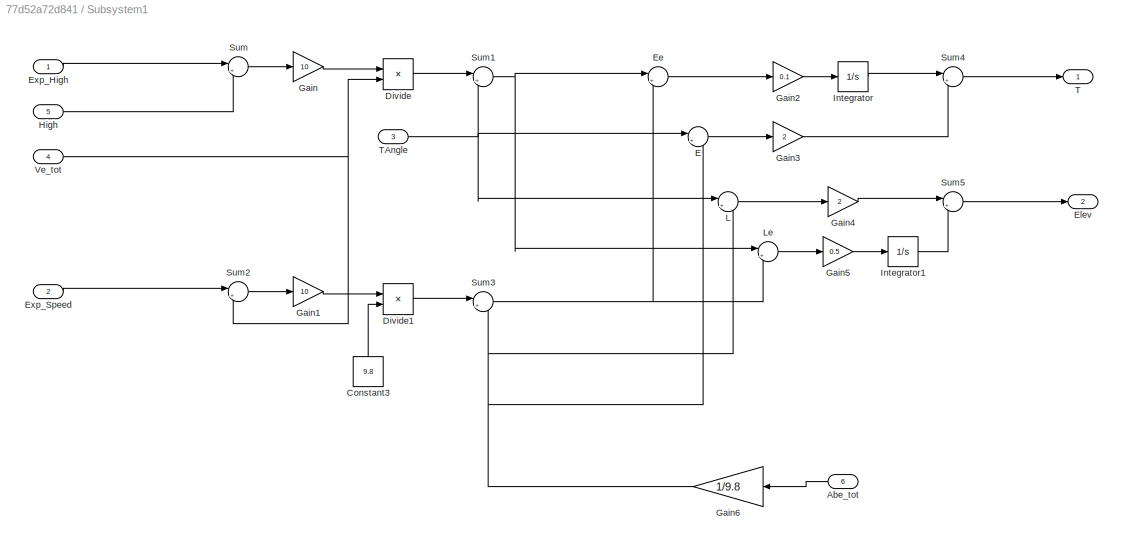
BLOCK [SubSystem] Subsystem1
BLOCK [Inport] Subsystem1/Abe_tot
  NameLocation = top
  Port = 6
BLOCK [Constant] Subsystem1/Constant3
  NameLocation = right
  Value = 9.8
BLOCK [Product] Subsystem1/Divide
  Inputs = */
BLOCK [Product] Subsystem1/Divide1
  Inputs = */
BLOCK [Sum] Subsystem1/E
  Inputs = |++
BLOCK [Sum] Subsystem1/Ee
  Inputs = |++
BLOCK [Outport] Subsystem1/Elev
  Port = 2
BLOCK [Inport] Subsystem1/Exp_High
BLOCK [Inport] Subsystem1/Exp_Speed
  Port = 2
BLOCK [Gain] Subsystem1/Gain
  Gain = 10
BLOCK [Gain] Subsystem1/Gain1
  Gain = 10
BLOCK [Gain] Subsystem1/Gain2
  Gain = 0.1
BLOCK [Gain] Subsystem1/Gain3
  Gain = 2
BLOCK [Gain] Subsystem1/Gain4
  Gain = 2
BLOCK [Gain] Subsystem1/Gain5
  Gain = 0.5
BLOCK [Gain] Subsystem1/Gain6
  Gain = 1/9.8
  NameLocation = top
BLOCK [Inport] Subsystem1/High
  Port = 5
BLOCK [Integrator] Subsystem1/Integrator
BLOCK [Integrator] Subsystem1/Integrator1
BLOCK [Sum] Subsystem1/L
  Inputs = |+-
BLOCK [Sum] Subsystem1/Le
  Inputs = |+-
BLOCK [Sum] Subsystem1/Sum
  Inputs = |+-
BLOCK [Sum] Subsystem1/Sum1
  Inputs = |+-
BLOCK [Sum] Subsystem1/Sum2
  Inputs = |+-
BLOCK [Sum] Subsystem1/Sum3
  Inputs = |+-
BLOCK [Sum] Subsystem1/Sum4
  Inputs = |++
BLOCK [Sum] Subsystem1/Sum5
  Inputs = |++
BLOCK [Outport] Subsystem1/T
BLOCK [Inport] Subsystem1/TAngle
  Port = 3
BLOCK [Inport] Subsystem1/Ve_tot
  Port = 4
BLOCK [Sum] Sum
  Inputs = |++
BLOCK [Sum] Sum1
  Inputs = |++
BLOCK [Sum] Sum2
  Inputs = |++
BLOCK [Sum] Sum3
  Inputs = |++
BLOCK [Sum] Sum4
  Inputs = |++
BLOCK [Sum] Sum5
  Inputs = |+-
BLOCK [Sum] Sum6
  Inputs = |+-
BLOCK [Sum] Sum7
  Inputs = |++-
BLOCK [Inport] T
  Port = 3
BLOCK [ZeroOrderHold] Zero-Order Hold
  SampleTime = -1
BLOCK [ZeroOrderHold] Zero-Order Hold1
  SampleTime = -1
BLOCK [Inport] aileron
BLOCK [Inport] elevator
  Port = 2
BLOCK [Inport] rudder
  Port = 4
ANNOTATION (root): 1. See the Aerospace Blockset User's Guide for instructions to set up FlightGear.
ANNOTATION (root): 2. Install the dhc2 geometry model to FlightGear's data/Aircraft directory. The geometry is downloadable from www.flightgear.org.
ANNOTATION (root): 3. To start FlightGear, generate run script and run generated batch file by typing dos('runfg.bat &') at the MATLAB command line.
ANNOTATION (root): <copyright redacted>
ANNOTATION (root): Fly the De Havilland Beaver
ANNOTATION (root): How to run the De Havilland model:
ANNOTATION (root): gazebo ros
ANNOTATION (root): 侧滑，滚转，偏航置为0
ANNOTATION De Havilland Beaver Airframe/Aircraft Dynamics/Total Forces and Moments/Engine /eng: dpt
ANNOTATION Pilot/Input Signal Conditioning: T
ANNOTATION Pilot/Input Signal Conditioning: aileron
ANNOTATION Pilot/Input Signal Conditioning: elevator
ANNOTATION Pilot/Input Signal Conditioning: flap
ANNOTATION Pilot/Input Signal Conditioning: rudder
LINE Angle Conversion1:1 -> Goto4:1
LINE Angle Conversion5:1 -> Scope7:1
LINE Bus Selector1:1 -> Scope5:1
LINE Bus Selector1:2 -> Scope6:1
LINE Bus Selector1:3 -> Angle Conversion5:1
NET Bus Selector2:1 -> Dot Product:1, Dot Product:2
LINE Bus Selector2:2 -> Demux:1
LINE Bus Selector2:3 -> Demux1:1
LINE Bus Selector:1 -> Subsystem1:3
NET Bus Selector:2 -> Scope1:2, Subsystem1:4
NET Bus Selector:3 -> Scope:2, Subsystem1:5
LINE Bus Selector:4 -> Subsystem1:6
NET Constant1:1 -> Scope1:1, Subsystem1:2
LINE Constant2:1 -> Sum4:2
LINE Constant3:1 -> Sum5:1
LINE Constant4:1 -> Sum6:1
LINE Constant5:1 -> Sum7:2
LINE Constant6:1 -> Saturation7:1
NET Constant:1 -> Scope:1, Subsystem1:1
NET De Havilland Beaver Airframe/Aircraft Dynamics/6DOF (Quaternion):1 -> De Havilland Beaver Airframe/Aircraft Dynamics/Bus Creator:2, De Havilland Beaver Airframe/Aircraft Dynamics/Demux:1, De Havilland Beaver Airframe/Aircraft Dynamics/Selector1:1
NET De Havilland Beaver Airframe/Aircraft Dynamics/6DOF (Quaternion):2 -> De Havilland Beaver Airframe/Aircraft Dynamics/Bus Creator:3, De Havilland Beaver Airframe/Aircraft Dynamics/Demux2:1, De Havilland Beaver Airframe/Aircraft Dynamics/Scope1:1, De Havilland Beaver Airframe/Aircraft Dynamics/xyH:1
NET De Havilland Beaver Airframe/Aircraft Dynamics/6DOF (Quaternion):3 -> De Havilland Beaver Airframe/Aircraft Dynamics/Bus Creator:5, De Havilland Beaver Airframe/Aircraft Dynamics/Scope:1
NET De Havilland Beaver Airframe/Aircraft Dynamics/6DOF (Quaternion):4 -> De Havilland Beaver Airframe/Aircraft Dynamics/Bus Creator:6, De Havilland Beaver Airframe/Aircraft Dynamics/Total Forces and Moments:3
NET De Havilland Beaver Airframe/Aircraft Dynamics/6DOF (Quaternion):5 -> De Havilland Beaver Airframe/Aircraft Dynamics/Bus Creator:7, De Havilland Beaver Airframe/Aircraft Dynamics/Scope4:1
NET De Havilland Beaver Airframe/Aircraft Dynamics/6DOF (Quaternion):6 -> De Havilland Beaver Airframe/Aircraft Dynamics/Bus Creator:8, De Havilland Beaver Airframe/Aircraft Dynamics/Scope5:1
NET De Havilland Beaver Airframe/Aircraft Dynamics/6DOF (Quaternion):7 -> De Havilland Beaver Airframe/Aircraft Dynamics/Scope6:1, De Havilland Beaver Airframe/Aircraft Dynamics/Terminator:1
LINE De Havilland Beaver Airframe/Aircraft Dynamics/6DOF (Quaternion):8 -> De Havilland Beaver Airframe/Aircraft Dynamics/Terminator1:1
LINE De Havilland Beaver Airframe/Aircraft Dynamics/6DOF (Quaternion):9 -> De Havilland Beaver Airframe/Aircraft Dynamics/Demux1:1
LINE De Havilland Beaver Airframe/Aircraft Dynamics/Bus Creator:1 -> De Havilland Beaver Airframe/Aircraft Dynamics/AC Bus:1
LINE De Havilland Beaver Airframe/Aircraft Dynamics/Demux1:1 -> De Havilland Beaver Airframe/Aircraft Dynamics/MATLAB Function2:1
LINE De Havilland Beaver Airframe/Aircraft Dynamics/Demux1:2 -> De Havilland Beaver Airframe/Aircraft Dynamics/MATLAB Function2:2
LINE De Havilland Beaver Airframe/Aircraft Dynamics/Demux1:3 -> De Havilland Beaver Airframe/Aircraft Dynamics/MATLAB Function2:3
LINE De Havilland Beaver Airframe/Aircraft Dynamics/Demux2:3 -> De Havilland Beaver Airframe/Aircraft Dynamics/H:1
LINE De Havilland Beaver Airframe/Aircraft Dynamics/Demux3:1 -> De Havilland Beaver Airframe/Aircraft Dynamics/Mux:1
LINE De Havilland Beaver Airframe/Aircraft Dynamics/Demux3:2 -> De Havilland Beaver Airframe/Aircraft Dynamics/Mux:2
LINE De Havilland Beaver Airframe/Aircraft Dynamics/Demux3:3 -> De Havilland Beaver Airframe/Aircraft Dynamics/Mux:3
LINE De Havilland Beaver Airframe/Aircraft Dynamics/Demux4:1 -> De Havilland Beaver Airframe/Aircraft Dynamics/Mux1:1
LINE De Havilland Beaver Airframe/Aircraft Dynamics/Demux4:2 -> De Havilland Beaver Airframe/Aircraft Dynamics/Mux1:2
LINE De Havilland Beaver Airframe/Aircraft Dynamics/Demux4:3 -> De Havilland Beaver Airframe/Aircraft Dynamics/Mux1:3
LINE De Havilland Beaver Airframe/Aircraft Dynamics/Demux:1 -> De Havilland Beaver Airframe/Aircraft Dynamics/MATLAB Function:1
LINE De Havilland Beaver Airframe/Aircraft Dynamics/Demux:2 -> De Havilland Beaver Airframe/Aircraft Dynamics/MATLAB Function:2
LINE De Havilland Beaver Airframe/Aircraft Dynamics/Demux:3 -> De Havilland Beaver Airframe/Aircraft Dynamics/MATLAB Function:3
LINE De Havilland Beaver Airframe/Aircraft Dynamics/EnvirBus:1 -> De Havilland Beaver Airframe/Aircraft Dynamics/Total Forces and Moments:1
LINE De Havilland Beaver Airframe/Aircraft Dynamics/FltParams:1 -> De Havilland Beaver Airframe/Aircraft Dynamics/Total Forces and Moments:4
LINE De Havilland Beaver Airframe/Aircraft Dynamics/H:1 -> De Havilland Beaver Airframe/Aircraft Dynamics/Bus Creator:12
LINE De Havilland Beaver Airframe/Aircraft Dynamics/Hdot:1 -> De Havilland Beaver Airframe/Aircraft Dynamics/Bus Creator:1
LINE De Havilland Beaver Airframe/Aircraft Dynamics/MATLAB Function2:1 -> De Havilland Beaver Airframe/Aircraft Dynamics/Bus Creator:9
LINE De Havilland Beaver Airframe/Aircraft Dynamics/MATLAB Function:1 -> De Havilland Beaver Airframe/Aircraft Dynamics/Bus Creator:10
LINE De Havilland Beaver Airframe/Aircraft Dynamics/MATLAB Function:2 -> De Havilland Beaver Airframe/Aircraft Dynamics/Bus Creator:11
LINE De Havilland Beaver Airframe/Aircraft Dynamics/Mux1:1 -> De Havilland Beaver Airframe/Aircraft Dynamics/6DOF (Quaternion):2
LINE De Havilland Beaver Airframe/Aircraft Dynamics/Mux:1 -> De Havilland Beaver Airframe/Aircraft Dynamics/6DOF (Quaternion):1
LINE De Havilland Beaver Airframe/Aircraft Dynamics/Pilot:1 -> De Havilland Beaver Airframe/Aircraft Dynamics/Total Forces and Moments:2
LINE De Havilland Beaver Airframe/Aircraft Dynamics/Selector1:1 -> De Havilland Beaver Airframe/Aircraft Dynamics/Hdot:1
LINE De Havilland Beaver Airframe/Aircraft Dynamics/Total Forces and Moments/Actuators/Bus Selector2:1 -> De Havilland Beaver Airframe/Aircraft Dynamics/Total Forces and Moments/Actuators/Demux:1
LINE De Havilland Beaver Airframe/Aircraft Dynamics/Total Forces and Moments/Actuators/Demux:1 -> De Havilland Beaver Airframe/Aircraft Dynamics/Total Forces and Moments/Actuators/Mux:1
LINE De Havilland Beaver Airframe/Aircraft Dynamics/Total Forces and Moments/Actuators/Demux:2 -> De Havilland Beaver Airframe/Aircraft Dynamics/Total Forces and Moments/Actuators/Mux:2
LINE De Havilland Beaver Airframe/Aircraft Dynamics/Total Forces and Moments/Actuators/Demux:3 -> De Havilland Beaver Airframe/Aircraft Dynamics/Total Forces and Moments/Actuators/Mux:3
LINE De Havilland Beaver Airframe/Aircraft Dynamics/Total Forces and Moments/Actuators/Demux:4 -> De Havilland Beaver Airframe/Aircraft Dynamics/Total Forces and Moments/Actuators/Mux:4
LINE De Havilland Beaver Airframe/Aircraft Dynamics/Total Forces and Moments/Actuators/Initial inputs for aero:1 -> De Havilland Beaver Airframe/Aircraft Dynamics/Total Forces and Moments/Actuators/Sum1:1
LINE De Havilland Beaver Airframe/Aircraft Dynamics/Total Forces and Moments/Actuators/Mux:1 -> De Havilland Beaver Airframe/Aircraft Dynamics/Total Forces and Moments/Actuators/Sum1:2
LINE De Havilland Beaver Airframe/Aircraft Dynamics/Total Forces and Moments/Actuators/Pilot:1 -> De Havilland Beaver Airframe/Aircraft Dynamics/Total Forces and Moments/Actuators/Bus Selector2:1
LINE De Havilland Beaver Airframe/Aircraft Dynamics/Total Forces and Moments/Actuators/Sum1:1 -> De Havilland Beaver Airframe/Aircraft Dynamics/Total Forces and Moments/Actuators/uaero-out:1
LINE De Havilland Beaver Airframe/Aircraft Dynamics/Total Forces and Moments/Actuators:1 -> De Havilland Beaver Airframe/Aircraft Dynamics/Total Forces and Moments/Aerodynamics:1
NET De Havilland Beaver Airframe/Aircraft Dynamics/Total Forces and Moments/Aerodynamics/Actuator Increments/Actuator Deflections:1 -> De Havilland Beaver Airframe/Aircraft Dynamics/Total Forces and Moments/Aerodynamics/Actuator Increments/Aileron:2, De Havilland Beaver Airframe/Aircraft Dynamics/Total Forces and Moments/Aerodynamics/Actuator Increments/Elevator:1, De Havilland Beaver Airframe/Aircraft Dynamics/Total Forces and Moments/Aerodynamics/Actuator Increments/Flap:2, De Havilland Beaver Airframe/Aircraft Dynamics/Total Forces and Moments/Aerodynamics/Actuator Increments/Rudder:2
LINE De Havilland Beaver Airframe/Aircraft Dynamics/Total Forces and Moments/Aerodynamics/Actuator Increments/Aileron/Actuators:1 -> De Havilland Beaver Airframe/Aircraft Dynamics/Total Forces and Moments/Aerodynamics/Actuator Increments/Aileron/Selector1:1
LINE De Havilland Beaver Airframe/Aircraft Dynamics/Total Forces and Moments/Aerodynamics/Actuator Increments/Aileron/Gain1:1 -> De Havilland Beaver Airframe/Aircraft Dynamics/Total Forces and Moments/Aerodynamics/Actuator Increments/Aileron/Mux1:1
LINE De Havilland Beaver Airframe/Aircraft Dynamics/Total Forces and Moments/Aerodynamics/Actuator Increments/Aileron/Gain2:1 -> De Havilland Beaver Airframe/Aircraft Dynamics/Total Forces and Moments/Aerodynamics/Actuator Increments/Aileron/Mux1:2
LINE De Havilland Beaver Airframe/Aircraft Dynamics/Total Forces and Moments/Aerodynamics/Actuator Increments/Aileron/Gain3:1 -> De Havilland Beaver Airframe/Aircraft Dynamics/Total Forces and Moments/Aerodynamics/Actuator Increments/Aileron/Mux1:3
LINE De Havilland Beaver Airframe/Aircraft Dynamics/Total Forces and Moments/Aerodynamics/Actuator Increments/Aileron/Gain4:1 -> De Havilland Beaver Airframe/Aircraft Dynamics/Total Forces and Moments/Aerodynamics/Actuator Increments/Aileron/Mux1:6
LINE De Havilland Beaver Airframe/Aircraft Dynamics/Total Forces and Moments/Aerodynamics/Actuator Increments/Aileron/Gain5:1 -> De Havilland Beaver Airframe/Aircraft Dynamics/Total Forces and Moments/Aerodynamics/Actuator Increments/Aileron/Mux1:5
LINE De Havilland Beaver Airframe/Aircraft Dynamics/Total Forces and Moments/Aerodynamics/Actuator Increments/Aileron/Gain6:1 -> De Havilland Beaver Airframe/Aircraft Dynamics/Total Forces and Moments/Aerodynamics/Actuator Increments/Aileron/Sum1:1
LINE De Havilland Beaver Airframe/Aircraft Dynamics/Total Forces and Moments/Aerodynamics/Actuator Increments/Aileron/Gain7:1 -> De Havilland Beaver Airframe/Aircraft Dynamics/Total Forces and Moments/Aerodynamics/Actuator Increments/Aileron/Sum1:2
LINE De Havilland Beaver Airframe/Aircraft Dynamics/Total Forces and Moments/Aerodynamics/Actuator Increments/Aileron/Mux1:1 -> De Havilland Beaver Airframe/Aircraft Dynamics/Total Forces and Moments/Aerodynamics/Actuator Increments/Aileron/delCoeff:1
LINE De Havilland Beaver Airframe/Aircraft Dynamics/Total Forces and Moments/Aerodynamics/Actuator Increments/Aileron/Product4:1 -> De Havilland Beaver Airframe/Aircraft Dynamics/Total Forces and Moments/Aerodynamics/Actuator Increments/Aileron/Gain7:1
NET De Havilland Beaver Airframe/Aircraft Dynamics/Total Forces and Moments/Aerodynamics/Actuator Increments/Aileron/Selector1:1 -> De Havilland Beaver Airframe/Aircraft Dynamics/Total Forces and Moments/Aerodynamics/Actuator Increments/Aileron/Gain1:1, De Havilland Beaver Airframe/Aircraft Dynamics/Total Forces and Moments/Aerodynamics/Actuator Increments/Aileron/Gain2:1, De Havilland Beaver Airframe/Aircraft Dynamics/Total Forces and Moments/Aerodynamics/Actuator Increments/Aileron/Gain3:1, De Havilland Beaver Airframe/Aircraft Dynamics/Total Forces and Moments/Aerodynamics/Actuator Increments/Aileron/Gain4:1, De Havilland Beaver Airframe/Aircraft Dynamics/Total Forces and Moments/Aerodynamics/Actuator Increments/Aileron/Gain5:1, De Havilland Beaver Airframe/Aircraft Dynamics/Total Forces and Moments/Aerodynamics/Actuator Increments/Aileron/Gain6:1, De Havilland Beaver Airframe/Aircraft Dynamics/Total Forces and Moments/Aerodynamics/Actuator Increments/Aileron/Product4:1
LINE De Havilland Beaver Airframe/Aircraft Dynamics/Total Forces and Moments/Aerodynamics/Actuator Increments/Aileron/Sum1:1 -> De Havilland Beaver Airframe/Aircraft Dynamics/Total Forces and Moments/Aerodynamics/Actuator Increments/Aileron/Mux1:4
LINE De Havilland Beaver Airframe/Aircraft Dynamics/Total Forces and Moments/Aerodynamics/Actuator Increments/Aileron/alpha:1 -> De Havilland Beaver Airframe/Aircraft Dynamics/Total Forces and Moments/Aerodynamics/Actuator Increments/Aileron/Product4:2
LINE De Havilland Beaver Airframe/Aircraft Dynamics/Total Forces and Moments/Aerodynamics/Actuator Increments/Aileron:1 -> De Havilland Beaver Airframe/Aircraft Dynamics/Total Forces and Moments/Aerodynamics/Actuator Increments/Sum:1
LINE De Havilland Beaver Airframe/Aircraft Dynamics/Total Forces and Moments/Aerodynamics/Actuator Increments/Elevator/Actuators:1 -> De Havilland Beaver Airframe/Aircraft Dynamics/Total Forces and Moments/Aerodynamics/Actuator Increments/Elevator/Selector1:1
NET De Havilland Beaver Airframe/Aircraft Dynamics/Total Forces and Moments/Aerodynamics/Actuator Increments/Elevator/Beta:1 -> De Havilland Beaver Airframe/Aircraft Dynamics/Total Forces and Moments/Aerodynamics/Actuator Increments/Elevator/Product4:1, De Havilland Beaver Airframe/Aircraft Dynamics/Total Forces and Moments/Aerodynamics/Actuator Increments/Elevator/Product4:2
NET De Havilland Beaver Airframe/Aircraft Dynamics/Total Forces and Moments/Aerodynamics/Actuator Increments/Elevator/Constant1:1 -> De Havilland Beaver Airframe/Aircraft Dynamics/Total Forces and Moments/Aerodynamics/Actuator Increments/Elevator/Mux1:1, De Havilland Beaver Airframe/Aircraft Dynamics/Total Forces and Moments/Aerodynamics/Actuator Increments/Elevator/Mux1:2, De Havilland Beaver Airframe/Aircraft Dynamics/Total Forces and Moments/Aerodynamics/Actuator Increments/Elevator/Mux1:4, De Havilland Beaver Airframe/Aircraft Dynamics/Total Forces and Moments/Aerodynamics/Actuator Increments/Elevator/Mux1:6
LINE De Havilland Beaver Airframe/Aircraft Dynamics/Total Forces and Moments/Aerodynamics/Actuator Increments/Elevator/Gain1:1 -> De Havilland Beaver Airframe/Aircraft Dynamics/Total Forces and Moments/Aerodynamics/Actuator Increments/Elevator/Sum1:2
LINE De Havilland Beaver Airframe/Aircraft Dynamics/Total Forces and Moments/Aerodynamics/Actuator Increments/Elevator/Gain2:1 -> De Havilland Beaver Airframe/Aircraft Dynamics/Total Forces and Moments/Aerodynamics/Actuator Increments/Elevator/Sum1:1
LINE De Havilland Beaver Airframe/Aircraft Dynamics/Total Forces and Moments/Aerodynamics/Actuator Increments/Elevator/Gain3:1 -> De Havilland Beaver Airframe/Aircraft Dynamics/Total Forces and Moments/Aerodynamics/Actuator Increments/Elevator/Mux1:5
LINE De Havilland Beaver Airframe/Aircraft Dynamics/Total Forces and Moments/Aerodynamics/Actuator Increments/Elevator/Mux1:1 -> De Havilland Beaver Airframe/Aircraft Dynamics/Total Forces and Moments/Aerodynamics/Actuator Increments/Elevator/delCoeff:1
LINE De Havilland Beaver Airframe/Aircraft Dynamics/Total Forces and Moments/Aerodynamics/Actuator Increments/Elevator/Product4:1 -> De Havilland Beaver Airframe/Aircraft Dynamics/Total Forces and Moments/Aerodynamics/Actuator Increments/Elevator/Gain2:1
NET De Havilland Beaver Airframe/Aircraft Dynamics/Total Forces and Moments/Aerodynamics/Actuator Increments/Elevator/Selector1:1 -> De Havilland Beaver Airframe/Aircraft Dynamics/Total Forces and Moments/Aerodynamics/Actuator Increments/Elevator/Gain1:1, De Havilland Beaver Airframe/Aircraft Dynamics/Total Forces and Moments/Aerodynamics/Actuator Increments/Elevator/Gain3:1, De Havilland Beaver Airframe/Aircraft Dynamics/Total Forces and Moments/Aerodynamics/Actuator Increments/Elevator/Product4:3
LINE De Havilland Beaver Airframe/Aircraft Dynamics/Total Forces and Moments/Aerodynamics/Actuator Increments/Elevator/Sum1:1 -> De Havilland Beaver Airframe/Aircraft Dynamics/Total Forces and Moments/Aerodynamics/Actuator Increments/Elevator/Mux1:3
LINE De Havilland Beaver Airframe/Aircraft Dynamics/Total Forces and Moments/Aerodynamics/Actuator Increments/Elevator:1 -> De Havilland Beaver Airframe/Aircraft Dynamics/Total Forces and Moments/Aerodynamics/Actuator Increments/Sum:2
LINE De Havilland Beaver Airframe/Aircraft Dynamics/Total Forces and Moments/Aerodynamics/Actuator Increments/Flap/Actuators:1 -> De Havilland Beaver Airframe/Aircraft Dynamics/Total Forces and Moments/Aerodynamics/Actuator Increments/Flap/Selector1:1
NET De Havilland Beaver Airframe/Aircraft Dynamics/Total Forces and Moments/Aerodynamics/Actuator Increments/Flap/Alpha:1 -> De Havilland Beaver Airframe/Aircraft Dynamics/Total Forces and Moments/Aerodynamics/Actuator Increments/Flap/Product1:2, De Havilland Beaver Airframe/Aircraft Dynamics/Total Forces and Moments/Aerodynamics/Actuator Increments/Flap/Product4:2
LINE De Havilland Beaver Airframe/Aircraft Dynamics/Total Forces and Moments/Aerodynamics/Actuator Increments/Flap/Constant1:1 -> De Havilland Beaver Airframe/Aircraft Dynamics/Total Forces and Moments/Aerodynamics/Actuator Increments/Flap/Mux1:2
LINE De Havilland Beaver Airframe/Aircraft Dynamics/Total Forces and Moments/Aerodynamics/Actuator Increments/Flap/Constant2:1 -> De Havilland Beaver Airframe/Aircraft Dynamics/Total Forces and Moments/Aerodynamics/Actuator Increments/Flap/Mux1:4
LINE De Havilland Beaver Airframe/Aircraft Dynamics/Total Forces and Moments/Aerodynamics/Actuator Increments/Flap/Constant3:1 -> De Havilland Beaver Airframe/Aircraft Dynamics/Total Forces and Moments/Aerodynamics/Actuator Increments/Flap/Mux1:6
LINE De Havilland Beaver Airframe/Aircraft Dynamics/Total Forces and Moments/Aerodynamics/Actuator Increments/Flap/Gain1:1 -> De Havilland Beaver Airframe/Aircraft Dynamics/Total Forces and Moments/Aerodynamics/Actuator Increments/Flap/Sum1:1
LINE De Havilland Beaver Airframe/Aircraft Dynamics/Total Forces and Moments/Aerodynamics/Actuator Increments/Flap/Gain2:1 -> De Havilland Beaver Airframe/Aircraft Dynamics/Total Forces and Moments/Aerodynamics/Actuator Increments/Flap/Sum1:2
LINE De Havilland Beaver Airframe/Aircraft Dynamics/Total Forces and Moments/Aerodynamics/Actuator Increments/Flap/Gain3:1 -> De Havilland Beaver Airframe/Aircraft Dynamics/Total Forces and Moments/Aerodynamics/Actuator Increments/Flap/Sum2:1
LINE De Havilland Beaver Airframe/Aircraft Dynamics/Total Forces and Moments/Aerodynamics/Actuator Increments/Flap/Gain4:1 -> De Havilland Beaver Airframe/Aircraft Dynamics/Total Forces and Moments/Aerodynamics/Actuator Increments/Flap/Sum2:2
LINE De Havilland Beaver Airframe/Aircraft Dynamics/Total Forces and Moments/Aerodynamics/Actuator Increments/Flap/Gain5:1 -> De Havilland Beaver Airframe/Aircraft Dynamics/Total Forces and Moments/Aerodynamics/Actuator Increments/Flap/Mux1:5
LINE De Havilland Beaver Airframe/Aircraft Dynamics/Total Forces and Moments/Aerodynamics/Actuator Increments/Flap/Mux1:1 -> De Havilland Beaver Airframe/Aircraft Dynamics/Total Forces and Moments/Aerodynamics/Actuator Increments/Flap/delCoeff:1
LINE De Havilland Beaver Airframe/Aircraft Dynamics/Total Forces and Moments/Aerodynamics/Actuator Increments/Flap/Product1:1 -> De Havilland Beaver Airframe/Aircraft Dynamics/Total Forces and Moments/Aerodynamics/Actuator Increments/Flap/Gain4:1
LINE De Havilland Beaver Airframe/Aircraft Dynamics/Total Forces and Moments/Aerodynamics/Actuator Increments/Flap/Product4:1 -> De Havilland Beaver Airframe/Aircraft Dynamics/Total Forces and Moments/Aerodynamics/Actuator Increments/Flap/Gain2:1
NET De Havilland Beaver Airframe/Aircraft Dynamics/Total Forces and Moments/Aerodynamics/Actuator Increments/Flap/Selector1:1 -> De Havilland Beaver Airframe/Aircraft Dynamics/Total Forces and Moments/Aerodynamics/Actuator Increments/Flap/Gain1:1, De Havilland Beaver Airframe/Aircraft Dynamics/Total Forces and Moments/Aerodynamics/Actuator Increments/Flap/Gain3:1, De Havilland Beaver Airframe/Aircraft Dynamics/Total Forces and Moments/Aerodynamics/Actuator Increments/Flap/Gain5:1, De Havilland Beaver Airframe/Aircraft Dynamics/Total Forces and Moments/Aerodynamics/Actuator Increments/Flap/Product1:1, De Havilland Beaver Airframe/Aircraft Dynamics/Total Forces and Moments/Aerodynamics/Actuator Increments/Flap/Product4:1
LINE De Havilland Beaver Airframe/Aircraft Dynamics/Total Forces and Moments/Aerodynamics/Actuator Increments/Flap/Sum1:1 -> De Havilland Beaver Airframe/Aircraft Dynamics/Total Forces and Moments/Aerodynamics/Actuator Increments/Flap/Mux1:1
LINE De Havilland Beaver Airframe/Aircraft Dynamics/Total Forces and Moments/Aerodynamics/Actuator Increments/Flap/Sum2:1 -> De Havilland Beaver Airframe/Aircraft Dynamics/Total Forces and Moments/Aerodynamics/Actuator Increments/Flap/Mux1:3
LINE De Havilland Beaver Airframe/Aircraft Dynamics/Total Forces and Moments/Aerodynamics/Actuator Increments/Flap:1 -> De Havilland Beaver Airframe/Aircraft Dynamics/Total Forces and Moments/Aerodynamics/Actuator Increments/Sum:4
LINE De Havilland Beaver Airframe/Aircraft Dynamics/Total Forces and Moments/Aerodynamics/Actuator Increments/Rudder/Actuators:1 -> De Havilland Beaver Airframe/Aircraft Dynamics/Total Forces and Moments/Aerodynamics/Actuator Increments/Rudder/Selector1:1
LINE De Havilland Beaver Airframe/Aircraft Dynamics/Total Forces and Moments/Aerodynamics/Actuator Increments/Rudder/Alpha:1 -> De Havilland Beaver Airframe/Aircraft Dynamics/Total Forces and Moments/Aerodynamics/Actuator Increments/Rudder/Product1:2
LINE De Havilland Beaver Airframe/Aircraft Dynamics/Total Forces and Moments/Aerodynamics/Actuator Increments/Rudder/Constant1:1 -> De Havilland Beaver Airframe/Aircraft Dynamics/Total Forces and Moments/Aerodynamics/Actuator Increments/Rudder/Mux1:3
LINE De Havilland Beaver Airframe/Aircraft Dynamics/Total Forces and Moments/Aerodynamics/Actuator Increments/Rudder/Constant2:1 -> De Havilland Beaver Airframe/Aircraft Dynamics/Total Forces and Moments/Aerodynamics/Actuator Increments/Rudder/Mux1:5
LINE De Havilland Beaver Airframe/Aircraft Dynamics/Total Forces and Moments/Aerodynamics/Actuator Increments/Rudder/Gain1:1 -> De Havilland Beaver Airframe/Aircraft Dynamics/Total Forces and Moments/Aerodynamics/Actuator Increments/Rudder/Mux1:4
LINE De Havilland Beaver Airframe/Aircraft Dynamics/Total Forces and Moments/Aerodynamics/Actuator Increments/Rudder/Gain2:1 -> De Havilland Beaver Airframe/Aircraft Dynamics/Total Forces and Moments/Aerodynamics/Actuator Increments/Rudder/Mux1:6
LINE De Havilland Beaver Airframe/Aircraft Dynamics/Total Forces and Moments/Aerodynamics/Actuator Increments/Rudder/Gain3:1 -> De Havilland Beaver Airframe/Aircraft Dynamics/Total Forces and Moments/Aerodynamics/Actuator Increments/Rudder/Sum1:2
LINE De Havilland Beaver Airframe/Aircraft Dynamics/Total Forces and Moments/Aerodynamics/Actuator Increments/Rudder/Gain4:1 -> De Havilland Beaver Airframe/Aircraft Dynamics/Total Forces and Moments/Aerodynamics/Actuator Increments/Rudder/Sum1:1
LINE De Havilland Beaver Airframe/Aircraft Dynamics/Total Forces and Moments/Aerodynamics/Actuator Increments/Rudder/Gain5:1 -> De Havilland Beaver Airframe/Aircraft Dynamics/Total Forces and Moments/Aerodynamics/Actuator Increments/Rudder/Mux1:1
LINE De Havilland Beaver Airframe/Aircraft Dynamics/Total Forces and Moments/Aerodynamics/Actuator Increments/Rudder/Mux1:1 -> De Havilland Beaver Airframe/Aircraft Dynamics/Total Forces and Moments/Aerodynamics/Actuator Increments/Rudder/delCoeff:1
LINE De Havilland Beaver Airframe/Aircraft Dynamics/Total Forces and Moments/Aerodynamics/Actuator Increments/Rudder/Product1:1 -> De Havilland Beaver Airframe/Aircraft Dynamics/Total Forces and Moments/Aerodynamics/Actuator Increments/Rudder/Gain3:1
NET De Havilland Beaver Airframe/Aircraft Dynamics/Total Forces and Moments/Aerodynamics/Actuator Increments/Rudder/Selector1:1 -> De Havilland Beaver Airframe/Aircraft Dynamics/Total Forces and Moments/Aerodynamics/Actuator Increments/Rudder/Gain1:1, De Havilland Beaver Airframe/Aircraft Dynamics/Total Forces and Moments/Aerodynamics/Actuator Increments/Rudder/Gain2:1, De Havilland Beaver Airframe/Aircraft Dynamics/Total Forces and Moments/Aerodynamics/Actuator Increments/Rudder/Gain4:1, De Havilland Beaver Airframe/Aircraft Dynamics/Total Forces and Moments/Aerodynamics/Actuator Increments/Rudder/Gain5:1, De Havilland Beaver Airframe/Aircraft Dynamics/Total Forces and Moments/Aerodynamics/Actuator Increments/Rudder/Product1:1
LINE De Havilland Beaver Airframe/Aircraft Dynamics/Total Forces and Moments/Aerodynamics/Actuator Increments/Rudder/Sum1:1 -> De Havilland Beaver Airframe/Aircraft Dynamics/Total Forces and Moments/Aerodynamics/Actuator Increments/Rudder/Mux1:2
LINE De Havilland Beaver Airframe/Aircraft Dynamics/Total Forces and Moments/Aerodynamics/Actuator Increments/Rudder:1 -> De Havilland Beaver Airframe/Aircraft Dynamics/Total Forces and Moments/Aerodynamics/Actuator Increments/Sum:3
LINE De Havilland Beaver Airframe/Aircraft Dynamics/Total Forces and Moments/Aerodynamics/Actuator Increments/Sum:1 -> De Havilland Beaver Airframe/Aircraft Dynamics/Total Forces and Moments/Aerodynamics/Actuator Increments/Coefficients:1
NET De Havilland Beaver Airframe/Aircraft Dynamics/Total Forces and Moments/Aerodynamics/Actuator Increments/alpha:1 -> De Havilland Beaver Airframe/Aircraft Dynamics/Total Forces and Moments/Aerodynamics/Actuator Increments/Aileron:1, De Havilland Beaver Airframe/Aircraft Dynamics/Total Forces and Moments/Aerodynamics/Actuator Increments/Flap:1, De Havilland Beaver Airframe/Aircraft Dynamics/Total Forces and Moments/Aerodynamics/Actuator Increments/Rudder:1
LINE De Havilland Beaver Airframe/Aircraft Dynamics/Total Forces and Moments/Aerodynamics/Actuator Increments/beta:1 -> De Havilland Beaver Airframe/Aircraft Dynamics/Total Forces and Moments/Aerodynamics/Actuator Increments/Elevator:2
NET De Havilland Beaver Airframe/Aircraft Dynamics/Total Forces and Moments/Aerodynamics/Actuator Increments:1 -> De Havilland Beaver Airframe/Aircraft Dynamics/Total Forces and Moments/Aerodynamics/Scope1:1, De Havilland Beaver Airframe/Aircraft Dynamics/Total Forces and Moments/Aerodynamics/Sum:2
LINE De Havilland Beaver Airframe/Aircraft Dynamics/Total Forces and Moments/Aerodynamics/Body Rate Damping/Demux:1 -> De Havilland Beaver Airframe/Aircraft Dynamics/Total Forces and Moments/Aerodynamics/Body Rate Damping/Product:2
LINE De Havilland Beaver Airframe/Aircraft Dynamics/Total Forces and Moments/Aerodynamics/Body Rate Damping/Demux:2 -> De Havilland Beaver Airframe/Aircraft Dynamics/Total Forces and Moments/Aerodynamics/Body Rate Damping/Product1:2
LINE De Havilland Beaver Airframe/Aircraft Dynamics/Total Forces and Moments/Aerodynamics/Body Rate Damping/Demux:3 -> De Havilland Beaver Airframe/Aircraft Dynamics/Total Forces and Moments/Aerodynamics/Body Rate Damping/Product2:2
LINE De Havilland Beaver Airframe/Aircraft Dynamics/Total Forces and Moments/Aerodynamics/Body Rate Damping/Product1:1 -> De Havilland Beaver Airframe/Aircraft Dynamics/Total Forces and Moments/Aerodynamics/Body Rate Damping/Reference Length:1
LINE De Havilland Beaver Airframe/Aircraft Dynamics/Total Forces and Moments/Aerodynamics/Body Rate Damping/Product2:1 -> De Havilland Beaver Airframe/Aircraft Dynamics/Total Forces and Moments/Aerodynamics/Body Rate Damping/Reference Span :1
LINE De Havilland Beaver Airframe/Aircraft Dynamics/Total Forces and Moments/Aerodynamics/Body Rate Damping/Product3:1 -> De Havilland Beaver Airframe/Aircraft Dynamics/Total Forces and Moments/Aerodynamics/Body Rate Damping/Coefficients:1
LINE De Havilland Beaver Airframe/Aircraft Dynamics/Total Forces and Moments/Aerodynamics/Body Rate Damping/Product:1 -> De Havilland Beaver Airframe/Aircraft Dynamics/Total Forces and Moments/Aerodynamics/Body Rate Damping/Reference Span:1
LINE De Havilland Beaver Airframe/Aircraft Dynamics/Total Forces and Moments/Aerodynamics/Body Rate Damping/Reference Length:1 -> De Havilland Beaver Airframe/Aircraft Dynamics/Total Forces and Moments/Aerodynamics/Body Rate Damping/Sum1:2
LINE De Havilland Beaver Airframe/Aircraft Dynamics/Total Forces and Moments/Aerodynamics/Body Rate Damping/Reference Span :1 -> De Havilland Beaver Airframe/Aircraft Dynamics/Total Forces and Moments/Aerodynamics/Body Rate Damping/Sum1:3
LINE De Havilland Beaver Airframe/Aircraft Dynamics/Total Forces and Moments/Aerodynamics/Body Rate Damping/Reference Span:1 -> De Havilland Beaver Airframe/Aircraft Dynamics/Total Forces and Moments/Aerodynamics/Body Rate Damping/Sum1:1
LINE De Havilland Beaver Airframe/Aircraft Dynamics/Total Forces and Moments/Aerodynamics/Body Rate Damping/Sum1:1 -> De Havilland Beaver Airframe/Aircraft Dynamics/Total Forces and Moments/Aerodynamics/Body Rate Damping/Product3:1
LINE De Havilland Beaver Airframe/Aircraft Dynamics/Total Forces and Moments/Aerodynamics/Body Rate Damping/V:1 -> De Havilland Beaver Airframe/Aircraft Dynamics/Total Forces and Moments/Aerodynamics/Body Rate Damping/Product3:2
LINE De Havilland Beaver Airframe/Aircraft Dynamics/Total Forces and Moments/Aerodynamics/Body Rate Damping/p,q,r:1 -> De Havilland Beaver Airframe/Aircraft Dynamics/Total Forces and Moments/Aerodynamics/Body Rate Damping/Demux:1
NET De Havilland Beaver Airframe/Aircraft Dynamics/Total Forces and Moments/Aerodynamics/Body Rate Damping/p/Constant1:1 -> De Havilland Beaver Airframe/Aircraft Dynamics/Total Forces and Moments/Aerodynamics/Body Rate Damping/p/Mux1:1, De Havilland Beaver Airframe/Aircraft Dynamics/Total Forces and Moments/Aerodynamics/Body Rate Damping/p/Mux1:3, De Havilland Beaver Airframe/Aircraft Dynamics/Total Forces and Moments/Aerodynamics/Body Rate Damping/p/Mux1:5
LINE De Havilland Beaver Airframe/Aircraft Dynamics/Total Forces and Moments/Aerodynamics/Body Rate Damping/p/Constant2:1 -> De Havilland Beaver Airframe/Aircraft Dynamics/Total Forces and Moments/Aerodynamics/Body Rate Damping/p/Mux1:2
LINE De Havilland Beaver Airframe/Aircraft Dynamics/Total Forces and Moments/Aerodynamics/Body Rate Damping/p/Constant3:1 -> De Havilland Beaver Airframe/Aircraft Dynamics/Total Forces and Moments/Aerodynamics/Body Rate Damping/p/Mux1:4
LINE De Havilland Beaver Airframe/Aircraft Dynamics/Total Forces and Moments/Aerodynamics/Body Rate Damping/p/Constant4:1 -> De Havilland Beaver Airframe/Aircraft Dynamics/Total Forces and Moments/Aerodynamics/Body Rate Damping/p/Mux1:6
LINE De Havilland Beaver Airframe/Aircraft Dynamics/Total Forces and Moments/Aerodynamics/Body Rate Damping/p/Mux1:1 -> De Havilland Beaver Airframe/Aircraft Dynamics/Total Forces and Moments/Aerodynamics/Body Rate Damping/p/delCoeff:1
LINE De Havilland Beaver Airframe/Aircraft Dynamics/Total Forces and Moments/Aerodynamics/Body Rate Damping/p:1 -> De Havilland Beaver Airframe/Aircraft Dynamics/Total Forces and Moments/Aerodynamics/Body Rate Damping/Product:1
NET De Havilland Beaver Airframe/Aircraft Dynamics/Total Forces and Moments/Aerodynamics/Body Rate Damping/q/Constant1:1 -> De Havilland Beaver Airframe/Aircraft Dynamics/Total Forces and Moments/Aerodynamics/Body Rate Damping/q/Mux1:2, De Havilland Beaver Airframe/Aircraft Dynamics/Total Forces and Moments/Aerodynamics/Body Rate Damping/q/Mux1:4
LINE De Havilland Beaver Airframe/Aircraft Dynamics/Total Forces and Moments/Aerodynamics/Body Rate Damping/q/Constant2:1 -> De Havilland Beaver Airframe/Aircraft Dynamics/Total Forces and Moments/Aerodynamics/Body Rate Damping/q/Mux1:3
LINE De Havilland Beaver Airframe/Aircraft Dynamics/Total Forces and Moments/Aerodynamics/Body Rate Damping/q/Constant3:1 -> De Havilland Beaver Airframe/Aircraft Dynamics/Total Forces and Moments/Aerodynamics/Body Rate Damping/q/Mux1:1
LINE De Havilland Beaver Airframe/Aircraft Dynamics/Total Forces and Moments/Aerodynamics/Body Rate Damping/q/Constant4:1 -> De Havilland Beaver Airframe/Aircraft Dynamics/Total Forces and Moments/Aerodynamics/Body Rate Damping/q/Mux1:5
LINE De Havilland Beaver Airframe/Aircraft Dynamics/Total Forces and Moments/Aerodynamics/Body Rate Damping/q/Constant5:1 -> De Havilland Beaver Airframe/Aircraft Dynamics/Total Forces and Moments/Aerodynamics/Body Rate Damping/q/Mux1:6
LINE De Havilland Beaver Airframe/Aircraft Dynamics/Total Forces and Moments/Aerodynamics/Body Rate Damping/q/Mux1:1 -> De Havilland Beaver Airframe/Aircraft Dynamics/Total Forces and Moments/Aerodynamics/Body Rate Damping/q/delCoeff:1
LINE De Havilland Beaver Airframe/Aircraft Dynamics/Total Forces and Moments/Aerodynamics/Body Rate Damping/q:1 -> De Havilland Beaver Airframe/Aircraft Dynamics/Total Forces and Moments/Aerodynamics/Body Rate Damping/Product1:1
LINE De Havilland Beaver Airframe/Aircraft Dynamics/Total Forces and Moments/Aerodynamics/Body Rate Damping/r/Constant1:1 -> De Havilland Beaver Airframe/Aircraft Dynamics/Total Forces and Moments/Aerodynamics/Body Rate Damping/r/Mux1:2
LINE De Havilland Beaver Airframe/Aircraft Dynamics/Total Forces and Moments/Aerodynamics/Body Rate Damping/r/Constant2:1 -> De Havilland Beaver Airframe/Aircraft Dynamics/Total Forces and Moments/Aerodynamics/Body Rate Damping/r/Mux1:4
LINE De Havilland Beaver Airframe/Aircraft Dynamics/Total Forces and Moments/Aerodynamics/Body Rate Damping/r/Constant3:1 -> De Havilland Beaver Airframe/Aircraft Dynamics/Total Forces and Moments/Aerodynamics/Body Rate Damping/r/Mux1:5
LINE De Havilland Beaver Airframe/Aircraft Dynamics/Total Forces and Moments/Aerodynamics/Body Rate Damping/r/Constant4:1 -> De Havilland Beaver Airframe/Aircraft Dynamics/Total Forces and Moments/Aerodynamics/Body Rate Damping/r/Mux1:6
NET De Havilland Beaver Airframe/Aircraft Dynamics/Total Forces and Moments/Aerodynamics/Body Rate Damping/r/Constant:1 -> De Havilland Beaver Airframe/Aircraft Dynamics/Total Forces and Moments/Aerodynamics/Body Rate Damping/r/Mux1:1, De Havilland Beaver Airframe/Aircraft Dynamics/Total Forces and Moments/Aerodynamics/Body Rate Damping/r/Mux1:3
LINE De Havilland Beaver Airframe/Aircraft Dynamics/Total Forces and Moments/Aerodynamics/Body Rate Damping/r/Mux1:1 -> De Havilland Beaver Airframe/Aircraft Dynamics/Total Forces and Moments/Aerodynamics/Body Rate Damping/r/delCoeff:1
LINE De Havilland Beaver Airframe/Aircraft Dynamics/Total Forces and Moments/Aerodynamics/Body Rate Damping/r:1 -> De Havilland Beaver Airframe/Aircraft Dynamics/Total Forces and Moments/Aerodynamics/Body Rate Damping/Product2:1
NET De Havilland Beaver Airframe/Aircraft Dynamics/Total Forces and Moments/Aerodynamics/Body Rate Damping:1 -> De Havilland Beaver Airframe/Aircraft Dynamics/Total Forces and Moments/Aerodynamics/Scope3:1, De Havilland Beaver Airframe/Aircraft Dynamics/Total Forces and Moments/Aerodynamics/Sum:3
NET De Havilland Beaver Airframe/Aircraft Dynamics/Total Forces and Moments/Aerodynamics/Bus Selector1:1 -> De Havilland Beaver Airframe/Aircraft Dynamics/Total Forces and Moments/Aerodynamics/Actuator Increments:1, De Havilland Beaver Airframe/Aircraft Dynamics/Total Forces and Moments/Aerodynamics/Datum Coefficients:1
NET De Havilland Beaver Airframe/Aircraft Dynamics/Total Forces and Moments/Aerodynamics/Bus Selector1:2 -> De Havilland Beaver Airframe/Aircraft Dynamics/Total Forces and Moments/Aerodynamics/Actuator Increments:2, De Havilland Beaver Airframe/Aircraft Dynamics/Total Forces and Moments/Aerodynamics/Datum Coefficients:2, De Havilland Beaver Airframe/Aircraft Dynamics/Total Forces and Moments/Aerodynamics/Scope4:1
LINE De Havilland Beaver Airframe/Aircraft Dynamics/Total Forces and Moments/Aerodynamics/Bus Selector2:1 -> De Havilland Beaver Airframe/Aircraft Dynamics/Total Forces and Moments/Aerodynamics/Body Rate Damping:1
LINE De Havilland Beaver Airframe/Aircraft Dynamics/Total Forces and Moments/Aerodynamics/Bus Selector2:2 -> De Havilland Beaver Airframe/Aircraft Dynamics/Total Forces and Moments/Aerodynamics/Body Rate Damping:2
LINE De Havilland Beaver Airframe/Aircraft Dynamics/Total Forces and Moments/Aerodynamics/Datum Coefficients/Constant:1 -> De Havilland Beaver Airframe/Aircraft Dynamics/Total Forces and Moments/Aerodynamics/Datum Coefficients/Sum4:2
LINE De Havilland Beaver Airframe/Aircraft Dynamics/Total Forces and Moments/Aerodynamics/Datum Coefficients/Gain10:1 -> De Havilland Beaver Airframe/Aircraft Dynamics/Total Forces and Moments/Aerodynamics/Datum Coefficients/Sum3:2
LINE De Havilland Beaver Airframe/Aircraft Dynamics/Total Forces and Moments/Aerodynamics/Datum Coefficients/Gain11:1 -> De Havilland Beaver Airframe/Aircraft Dynamics/Total Forces and Moments/Aerodynamics/Datum Coefficients/Sum3:3
LINE De Havilland Beaver Airframe/Aircraft Dynamics/Total Forces and Moments/Aerodynamics/Datum Coefficients/Gain1:1 -> De Havilland Beaver Airframe/Aircraft Dynamics/Total Forces and Moments/Aerodynamics/Datum Coefficients/Sum:2
LINE De Havilland Beaver Airframe/Aircraft Dynamics/Total Forces and Moments/Aerodynamics/Datum Coefficients/Gain2:1 -> De Havilland Beaver Airframe/Aircraft Dynamics/Total Forces and Moments/Aerodynamics/Datum Coefficients/Sum:3
LINE De Havilland Beaver Airframe/Aircraft Dynamics/Total Forces and Moments/Aerodynamics/Datum Coefficients/Gain3:1 -> De Havilland Beaver Airframe/Aircraft Dynamics/Total Forces and Moments/Aerodynamics/Datum Coefficients/Mux1:2
LINE De Havilland Beaver Airframe/Aircraft Dynamics/Total Forces and Moments/Aerodynamics/Datum Coefficients/Gain4:1 -> De Havilland Beaver Airframe/Aircraft Dynamics/Total Forces and Moments/Aerodynamics/Datum Coefficients/Sum1:2
LINE De Havilland Beaver Airframe/Aircraft Dynamics/Total Forces and Moments/Aerodynamics/Datum Coefficients/Gain5:1 -> De Havilland Beaver Airframe/Aircraft Dynamics/Total Forces and Moments/Aerodynamics/Datum Coefficients/Sum1:1
LINE De Havilland Beaver Airframe/Aircraft Dynamics/Total Forces and Moments/Aerodynamics/Datum Coefficients/Gain6:1 -> De Havilland Beaver Airframe/Aircraft Dynamics/Total Forces and Moments/Aerodynamics/Datum Coefficients/Mux1:4
LINE De Havilland Beaver Airframe/Aircraft Dynamics/Total Forces and Moments/Aerodynamics/Datum Coefficients/Gain7:1 -> De Havilland Beaver Airframe/Aircraft Dynamics/Total Forces and Moments/Aerodynamics/Datum Coefficients/Sum2:1
LINE De Havilland Beaver Airframe/Aircraft Dynamics/Total Forces and Moments/Aerodynamics/Datum Coefficients/Gain8:1 -> De Havilland Beaver Airframe/Aircraft Dynamics/Total Forces and Moments/Aerodynamics/Datum Coefficients/Sum2:2
LINE De Havilland Beaver Airframe/Aircraft Dynamics/Total Forces and Moments/Aerodynamics/Datum Coefficients/Gain9:1 -> De Havilland Beaver Airframe/Aircraft Dynamics/Total Forces and Moments/Aerodynamics/Datum Coefficients/Sum3:1
LINE De Havilland Beaver Airframe/Aircraft Dynamics/Total Forces and Moments/Aerodynamics/Datum Coefficients/Gain:1 -> De Havilland Beaver Airframe/Aircraft Dynamics/Total Forces and Moments/Aerodynamics/Datum Coefficients/Sum:1
LINE De Havilland Beaver Airframe/Aircraft Dynamics/Total Forces and Moments/Aerodynamics/Datum Coefficients/Mux1:1 -> De Havilland Beaver Airframe/Aircraft Dynamics/Total Forces and Moments/Aerodynamics/Datum Coefficients/Sum4:1
NET De Havilland Beaver Airframe/Aircraft Dynamics/Total Forces and Moments/Aerodynamics/Datum Coefficients/Product1:1 -> De Havilland Beaver Airframe/Aircraft Dynamics/Total Forces and Moments/Aerodynamics/Datum Coefficients/Gain2:1, De Havilland Beaver Airframe/Aircraft Dynamics/Total Forces and Moments/Aerodynamics/Datum Coefficients/Gain5:1
NET De Havilland Beaver Airframe/Aircraft Dynamics/Total Forces and Moments/Aerodynamics/Datum Coefficients/Product2:1 -> De Havilland Beaver Airframe/Aircraft Dynamics/Total Forces and Moments/Aerodynamics/Datum Coefficients/Gain11:1, De Havilland Beaver Airframe/Aircraft Dynamics/Total Forces and Moments/Aerodynamics/Datum Coefficients/Product3:1
LINE De Havilland Beaver Airframe/Aircraft Dynamics/Total Forces and Moments/Aerodynamics/Datum Coefficients/Product3:1 -> De Havilland Beaver Airframe/Aircraft Dynamics/Total Forces and Moments/Aerodynamics/Datum Coefficients/Gain8:1
NET De Havilland Beaver Airframe/Aircraft Dynamics/Total Forces and Moments/Aerodynamics/Datum Coefficients/Product4:1 -> De Havilland Beaver Airframe/Aircraft Dynamics/Total Forces and Moments/Aerodynamics/Datum Coefficients/Gain10:1, De Havilland Beaver Airframe/Aircraft Dynamics/Total Forces and Moments/Aerodynamics/Datum Coefficients/Gain1:1, De Havilland Beaver Airframe/Aircraft Dynamics/Total Forces and Moments/Aerodynamics/Datum Coefficients/Product1:1
LINE De Havilland Beaver Airframe/Aircraft Dynamics/Total Forces and Moments/Aerodynamics/Datum Coefficients/Sum1:1 -> De Havilland Beaver Airframe/Aircraft Dynamics/Total Forces and Moments/Aerodynamics/Datum Coefficients/Mux1:3
LINE De Havilland Beaver Airframe/Aircraft Dynamics/Total Forces and Moments/Aerodynamics/Datum Coefficients/Sum2:1 -> De Havilland Beaver Airframe/Aircraft Dynamics/Total Forces and Moments/Aerodynamics/Datum Coefficients/Mux1:6
LINE De Havilland Beaver Airframe/Aircraft Dynamics/Total Forces and Moments/Aerodynamics/Datum Coefficients/Sum3:1 -> De Havilland Beaver Airframe/Aircraft Dynamics/Total Forces and Moments/Aerodynamics/Datum Coefficients/Mux1:5
LINE De Havilland Beaver Airframe/Aircraft Dynamics/Total Forces and Moments/Aerodynamics/Datum Coefficients/Sum4:1 -> De Havilland Beaver Airframe/Aircraft Dynamics/Total Forces and Moments/Aerodynamics/Datum Coefficients/Coefficients:1
LINE De Havilland Beaver Airframe/Aircraft Dynamics/Total Forces and Moments/Aerodynamics/Datum Coefficients/Sum:1 -> De Havilland Beaver Airframe/Aircraft Dynamics/Total Forces and Moments/Aerodynamics/Datum Coefficients/Mux1:1
NET De Havilland Beaver Airframe/Aircraft Dynamics/Total Forces and Moments/Aerodynamics/Datum Coefficients/alpha:1 -> De Havilland Beaver Airframe/Aircraft Dynamics/Total Forces and Moments/Aerodynamics/Datum Coefficients/Gain4:1, De Havilland Beaver Airframe/Aircraft Dynamics/Total Forces and Moments/Aerodynamics/Datum Coefficients/Gain9:1, De Havilland Beaver Airframe/Aircraft Dynamics/Total Forces and Moments/Aerodynamics/Datum Coefficients/Gain:1, De Havilland Beaver Airframe/Aircraft Dynamics/Total Forces and Moments/Aerodynamics/Datum Coefficients/Product1:2, De Havilland Beaver Airframe/Aircraft Dynamics/Total Forces and Moments/Aerodynamics/Datum Coefficients/Product4:1, De Havilland Beaver Airframe/Aircraft Dynamics/Total Forces and Moments/Aerodynamics/Datum Coefficients/Product4:2
NET De Havilland Beaver Airframe/Aircraft Dynamics/Total Forces and Moments/Aerodynamics/Datum Coefficients/beta:1 -> De Havilland Beaver Airframe/Aircraft Dynamics/Total Forces and Moments/Aerodynamics/Datum Coefficients/Gain3:1, De Havilland Beaver Airframe/Aircraft Dynamics/Total Forces and Moments/Aerodynamics/Datum Coefficients/Gain6:1, De Havilland Beaver Airframe/Aircraft Dynamics/Total Forces and Moments/Aerodynamics/Datum Coefficients/Gain7:1, De Havilland Beaver Airframe/Aircraft Dynamics/Total Forces and Moments/Aerodynamics/Datum Coefficients/Product2:1, De Havilland Beaver Airframe/Aircraft Dynamics/Total Forces and Moments/Aerodynamics/Datum Coefficients/Product2:2, De Havilland Beaver Airframe/Aircraft Dynamics/Total Forces and Moments/Aerodynamics/Datum Coefficients/Product3:2
NET De Havilland Beaver Airframe/Aircraft Dynamics/Total Forces and Moments/Aerodynamics/Datum Coefficients:1 -> De Havilland Beaver Airframe/Aircraft Dynamics/Total Forces and Moments/Aerodynamics/Scope2:1, De Havilland Beaver Airframe/Aircraft Dynamics/Total Forces and Moments/Aerodynamics/Sum:1
NET De Havilland Beaver Airframe/Aircraft Dynamics/Total Forces and Moments/Aerodynamics/FltParams:1 -> De Havilland Beaver Airframe/Aircraft Dynamics/Total Forces and Moments/Aerodynamics/Bus Selector1:1, De Havilland Beaver Airframe/Aircraft Dynamics/Total Forces and Moments/Aerodynamics/Bus Selector2:1
NET De Havilland Beaver Airframe/Aircraft Dynamics/Total Forces and Moments/Aerodynamics/Sum:1 -> De Havilland Beaver Airframe/Aircraft Dynamics/Total Forces and Moments/Aerodynamics/Aero Coefficients:1, De Havilland Beaver Airframe/Aircraft Dynamics/Total Forces and Moments/Aerodynamics/Scope:1
LINE De Havilland Beaver Airframe/Aircraft Dynamics/Total Forces and Moments/Aerodynamics/Uaero:1 -> De Havilland Beaver Airframe/Aircraft Dynamics/Total Forces and Moments/Aerodynamics/Actuator Increments:3
LINE De Havilland Beaver Airframe/Aircraft Dynamics/Total Forces and Moments/Aerodynamics:1 -> De Havilland Beaver Airframe/Aircraft Dynamics/Total Forces and Moments/Forces and Moments:1
LINE De Havilland Beaver Airframe/Aircraft Dynamics/Total Forces and Moments/Bus Selector4:1 -> De Havilland Beaver Airframe/Aircraft Dynamics/Total Forces and Moments/Engine :3
LINE De Havilland Beaver Airframe/Aircraft Dynamics/Total Forces and Moments/Bus Selector4:2 -> De Havilland Beaver Airframe/Aircraft Dynamics/Total Forces and Moments/Gravity :1
LINE De Havilland Beaver Airframe/Aircraft Dynamics/Total Forces and Moments/DCM:1 -> De Havilland Beaver Airframe/Aircraft Dynamics/Total Forces and Moments/Gravity :2
LINE De Havilland Beaver Airframe/Aircraft Dynamics/Total Forces and Moments/Engine /Bus Selector4:1 -> De Havilland Beaver Airframe/Aircraft Dynamics/Total Forces and Moments/Engine /pow:3
LINE De Havilland Beaver Airframe/Aircraft Dynamics/Total Forces and Moments/Engine /Bus Selector4:2 -> De Havilland Beaver Airframe/Aircraft Dynamics/Total Forces and Moments/Engine /eng:2
LINE De Havilland Beaver Airframe/Aircraft Dynamics/Total Forces and Moments/Engine /Fltparams:1 -> De Havilland Beaver Airframe/Aircraft Dynamics/Total Forces and Moments/Engine /Bus Selector4:1
LINE De Havilland Beaver Airframe/Aircraft Dynamics/Total Forces and Moments/Engine /Pilot:1 -> De Havilland Beaver Airframe/Aircraft Dynamics/Total Forces and Moments/Engine /pow:2
LINE De Havilland Beaver Airframe/Aircraft Dynamics/Total Forces and Moments/Engine /eng/Constant:1 -> De Havilland Beaver Airframe/Aircraft Dynamics/Total Forces and Moments/Engine /eng/Mux2:2
LINE De Havilland Beaver Airframe/Aircraft Dynamics/Total Forces and Moments/Engine /eng/Gain1:1 -> De Havilland Beaver Airframe/Aircraft Dynamics/Total Forces and Moments/Engine /eng/Mux2:6
LINE De Havilland Beaver Airframe/Aircraft Dynamics/Total Forces and Moments/Engine /eng/Gain2:1 -> De Havilland Beaver Airframe/Aircraft Dynamics/Total Forces and Moments/Engine /eng/Mux2:5
LINE De Havilland Beaver Airframe/Aircraft Dynamics/Total Forces and Moments/Engine /eng/Gain3:1 -> De Havilland Beaver Airframe/Aircraft Dynamics/Total Forces and Moments/Engine /eng/Mux2:4
LINE De Havilland Beaver Airframe/Aircraft Dynamics/Total Forces and Moments/Engine /eng/Gain4:1 -> De Havilland Beaver Airframe/Aircraft Dynamics/Total Forces and Moments/Engine /eng/Mux2:3
LINE De Havilland Beaver Airframe/Aircraft Dynamics/Total Forces and Moments/Engine /eng/Gain5:1 -> De Havilland Beaver Airframe/Aircraft Dynamics/Total Forces and Moments/Engine /eng/Sum:1
LINE De Havilland Beaver Airframe/Aircraft Dynamics/Total Forces and Moments/Engine /eng/Gain6:1 -> De Havilland Beaver Airframe/Aircraft Dynamics/Total Forces and Moments/Engine /eng/Sum:2
LINE De Havilland Beaver Airframe/Aircraft Dynamics/Total Forces and Moments/Engine /eng/Mux2:1 -> De Havilland Beaver Airframe/Aircraft Dynamics/Total Forces and Moments/Engine /eng/Cprop:1
LINE De Havilland Beaver Airframe/Aircraft Dynamics/Total Forces and Moments/Engine /eng/Product2:1 -> De Havilland Beaver Airframe/Aircraft Dynamics/Total Forces and Moments/Engine /eng/Gain6:1
LINE De Havilland Beaver Airframe/Aircraft Dynamics/Total Forces and Moments/Engine /eng/Product3:1 -> De Havilland Beaver Airframe/Aircraft Dynamics/Total Forces and Moments/Engine /eng/Product4:1
LINE De Havilland Beaver Airframe/Aircraft Dynamics/Total Forces and Moments/Engine /eng/Product4:1 -> De Havilland Beaver Airframe/Aircraft Dynamics/Total Forces and Moments/Engine /eng/Gain3:1
LINE De Havilland Beaver Airframe/Aircraft Dynamics/Total Forces and Moments/Engine /eng/Product5:1 -> De Havilland Beaver Airframe/Aircraft Dynamics/Total Forces and Moments/Engine /eng/Gain1:1
LINE De Havilland Beaver Airframe/Aircraft Dynamics/Total Forces and Moments/Engine /eng/Product:1 -> De Havilland Beaver Airframe/Aircraft Dynamics/Total Forces and Moments/Engine /eng/Product2:1
LINE De Havilland Beaver Airframe/Aircraft Dynamics/Total Forces and Moments/Engine /eng/Sum:1 -> De Havilland Beaver Airframe/Aircraft Dynamics/Total Forces and Moments/Engine /eng/Mux2:1
NET De Havilland Beaver Airframe/Aircraft Dynamics/Total Forces and Moments/Engine /eng/alpha:1 -> De Havilland Beaver Airframe/Aircraft Dynamics/Total Forces and Moments/Engine /eng/Product2:2, De Havilland Beaver Airframe/Aircraft Dynamics/Total Forces and Moments/Engine /eng/Product3:1, De Havilland Beaver Airframe/Aircraft Dynamics/Total Forces and Moments/Engine /eng/Product3:2
NET De Havilland Beaver Airframe/Aircraft Dynamics/Total Forces and Moments/Engine /eng/dpt:1 -> De Havilland Beaver Airframe/Aircraft Dynamics/Total Forces and Moments/Engine /eng/Gain2:1, De Havilland Beaver Airframe/Aircraft Dynamics/Total Forces and Moments/Engine /eng/Gain4:1, De Havilland Beaver Airframe/Aircraft Dynamics/Total Forces and Moments/Engine /eng/Gain5:1, De Havilland Beaver Airframe/Aircraft Dynamics/Total Forces and Moments/Engine /eng/Product4:2, De Havilland Beaver Airframe/Aircraft Dynamics/Total Forces and Moments/Engine /eng/Product5:1, De Havilland Beaver Airframe/Aircraft Dynamics/Total Forces and Moments/Engine /eng/Product5:2, De Havilland Beaver Airframe/Aircraft Dynamics/Total Forces and Moments/Engine /eng/Product5:3, De Havilland Beaver Airframe/Aircraft Dynamics/Total Forces and Moments/Engine /eng/Product:1, De Havilland Beaver Airframe/Aircraft Dynamics/Total Forces and Moments/Engine /eng/Product:2
NET De Havilland Beaver Airframe/Aircraft Dynamics/Total Forces and Moments/Engine /eng:1 -> De Havilland Beaver Airframe/Aircraft Dynamics/Total Forces and Moments/Engine /Engine Coefficients:1, De Havilland Beaver Airframe/Aircraft Dynamics/Total Forces and Moments/Engine /Scope:1
NET De Havilland Beaver Airframe/Aircraft Dynamics/Total Forces and Moments/Engine /pow/Bus Selector1:1 -> De Havilland Beaver Airframe/Aircraft Dynamics/Total Forces and Moments/Engine /pow/Mux:1, De Havilland Beaver Airframe/Aircraft Dynamics/Total Forces and Moments/Engine /pow/P:1
LINE De Havilland Beaver Airframe/Aircraft Dynamics/Total Forces and Moments/Engine /pow/Constant1:1 -> De Havilland Beaver Airframe/Aircraft Dynamics/Total Forces and Moments/Engine /pow/Product:1
LINE De Havilland Beaver Airframe/Aircraft Dynamics/Total Forces and Moments/Engine /pow/Constant2:1 -> De Havilland Beaver Airframe/Aircraft Dynamics/Total Forces and Moments/Engine /pow/Sum:2
LINE De Havilland Beaver Airframe/Aircraft Dynamics/Total Forces and Moments/Engine /pow/Constant3:1 -> De Havilland Beaver Airframe/Aircraft Dynamics/Total Forces and Moments/Engine /pow/Sum1:1
LINE De Havilland Beaver Airframe/Aircraft Dynamics/Total Forces and Moments/Engine /pow/Constant:1 -> De Havilland Beaver Airframe/Aircraft Dynamics/Total Forces and Moments/Engine /pow/Product:7
LINE De Havilland Beaver Airframe/Aircraft Dynamics/Total Forces and Moments/Engine /pow/Gain1:1 -> De Havilland Beaver Airframe/Aircraft Dynamics/Total Forces and Moments/Engine /pow/Sum1:2
LINE De Havilland Beaver Airframe/Aircraft Dynamics/Total Forces and Moments/Engine /pow/Gain:1 -> De Havilland Beaver Airframe/Aircraft Dynamics/Total Forces and Moments/Engine /pow/Product:6
LINE De Havilland Beaver Airframe/Aircraft Dynamics/Total Forces and Moments/Engine /pow/Mux:1 -> De Havilland Beaver Airframe/Aircraft Dynamics/Total Forces and Moments/Engine /pow/P1:1
LINE De Havilland Beaver Airframe/Aircraft Dynamics/Total Forces and Moments/Engine /pow/P1:1 -> De Havilland Beaver Airframe/Aircraft Dynamics/Total Forces and Moments/Engine /pow/Sum1:3
LINE De Havilland Beaver Airframe/Aircraft Dynamics/Total Forces and Moments/Engine /pow/P:1 -> De Havilland Beaver Airframe/Aircraft Dynamics/Total Forces and Moments/Engine /pow/Gain1:1
LINE De Havilland Beaver Airframe/Aircraft Dynamics/Total Forces and Moments/Engine /pow/Pilot:1 -> De Havilland Beaver Airframe/Aircraft Dynamics/Total Forces and Moments/Engine /pow/Bus Selector1:1
LINE De Havilland Beaver Airframe/Aircraft Dynamics/Total Forces and Moments/Engine /pow/Product:1 -> De Havilland Beaver Airframe/Aircraft Dynamics/Total Forces and Moments/Engine /pow/Sum:1
LINE De Havilland Beaver Airframe/Aircraft Dynamics/Total Forces and Moments/Engine /pow/Sum1:1 -> De Havilland Beaver Airframe/Aircraft Dynamics/Total Forces and Moments/Engine /pow/Gain:1
LINE De Havilland Beaver Airframe/Aircraft Dynamics/Total Forces and Moments/Engine /pow/Sum:1 -> De Havilland Beaver Airframe/Aircraft Dynamics/Total Forces and Moments/Engine /pow/dpt:1
NET De Havilland Beaver Airframe/Aircraft Dynamics/Total Forces and Moments/Engine /pow/V:1 -> De Havilland Beaver Airframe/Aircraft Dynamics/Total Forces and Moments/Engine /pow/Product:2, De Havilland Beaver Airframe/Aircraft Dynamics/Total Forces and Moments/Engine /pow/Product:3, De Havilland Beaver Airframe/Aircraft Dynamics/Total Forces and Moments/Engine /pow/Product:4
NET De Havilland Beaver Airframe/Aircraft Dynamics/Total Forces and Moments/Engine /pow/rho:1 -> De Havilland Beaver Airframe/Aircraft Dynamics/Total Forces and Moments/Engine /pow/Mux:2, De Havilland Beaver Airframe/Aircraft Dynamics/Total Forces and Moments/Engine /pow/Product:5
LINE De Havilland Beaver Airframe/Aircraft Dynamics/Total Forces and Moments/Engine /pow:1 -> De Havilland Beaver Airframe/Aircraft Dynamics/Total Forces and Moments/Engine /eng:1
LINE De Havilland Beaver Airframe/Aircraft Dynamics/Total Forces and Moments/Engine /rho:1 -> De Havilland Beaver Airframe/Aircraft Dynamics/Total Forces and Moments/Engine /pow:1
LINE De Havilland Beaver Airframe/Aircraft Dynamics/Total Forces and Moments/Engine :1 -> De Havilland Beaver Airframe/Aircraft Dynamics/Total Forces and Moments/Forces and Moments:3
LINE De Havilland Beaver Airframe/Aircraft Dynamics/Total Forces and Moments/EnvirBus:1 -> De Havilland Beaver Airframe/Aircraft Dynamics/Total Forces and Moments/Bus Selector4:1
NET De Havilland Beaver Airframe/Aircraft Dynamics/Total Forces and Moments/FltParams:1 -> De Havilland Beaver Airframe/Aircraft Dynamics/Total Forces and Moments/Aerodynamics:2, De Havilland Beaver Airframe/Aircraft Dynamics/Total Forces and Moments/Engine :1, De Havilland Beaver Airframe/Aircraft Dynamics/Total Forces and Moments/Forces and Moments:2
LINE De Havilland Beaver Airframe/Aircraft Dynamics/Total Forces and Moments/Forces and Moments/Aero Coefficients:1 -> De Havilland Beaver Airframe/Aircraft Dynamics/Total Forces and Moments/Forces and Moments/Sum:2
LINE De Havilland Beaver Airframe/Aircraft Dynamics/Total Forces and Moments/Forces and Moments/Aerodynamic Forces and Moments:1 -> De Havilland Beaver Airframe/Aircraft Dynamics/Total Forces and Moments/Forces and Moments/XYZ:1
LINE De Havilland Beaver Airframe/Aircraft Dynamics/Total Forces and Moments/Forces and Moments/Aerodynamic Forces and Moments:2 -> De Havilland Beaver Airframe/Aircraft Dynamics/Total Forces and Moments/Forces and Moments/LMN:1
LINE De Havilland Beaver Airframe/Aircraft Dynamics/Total Forces and Moments/Forces and Moments/Bus Selector4:1 -> De Havilland Beaver Airframe/Aircraft Dynamics/Total Forces and Moments/Forces and Moments/Aerodynamic Forces and Moments:2
LINE De Havilland Beaver Airframe/Aircraft Dynamics/Total Forces and Moments/Forces and Moments/Engine Coefficients:1 -> De Havilland Beaver Airframe/Aircraft Dynamics/Total Forces and Moments/Forces and Moments/Sum:1
LINE De Havilland Beaver Airframe/Aircraft Dynamics/Total Forces and Moments/Forces and Moments/Fltparams:1 -> De Havilland Beaver Airframe/Aircraft Dynamics/Total Forces and Moments/Forces and Moments/Bus Selector4:1
LINE De Havilland Beaver Airframe/Aircraft Dynamics/Total Forces and Moments/Forces and Moments/Sum:1 -> De Havilland Beaver Airframe/Aircraft Dynamics/Total Forces and Moments/Forces and Moments/Aerodynamic Forces and Moments:1
NET De Havilland Beaver Airframe/Aircraft Dynamics/Total Forces and Moments/Forces and Moments/neglect center of gravity and center of pressure effects:1 -> De Havilland Beaver Airframe/Aircraft Dynamics/Total Forces and Moments/Forces and Moments/Aerodynamic Forces and Moments:3, De Havilland Beaver Airframe/Aircraft Dynamics/Total Forces and Moments/Forces and Moments/Aerodynamic Forces and Moments:4
NET De Havilland Beaver Airframe/Aircraft Dynamics/Total Forces and Moments/Forces and Moments:1 -> De Havilland Beaver Airframe/Aircraft Dynamics/Total Forces and Moments/Scope1:1, De Havilland Beaver Airframe/Aircraft Dynamics/Total Forces and Moments/Sum:1
NET De Havilland Beaver Airframe/Aircraft Dynamics/Total Forces and Moments/Forces and Moments:2 -> De Havilland Beaver Airframe/Aircraft Dynamics/Total Forces and Moments/Scope2:1, De Havilland Beaver Airframe/Aircraft Dynamics/Total Forces and Moments/Total Moment:1
LINE De Havilland Beaver Airframe/Aircraft Dynamics/Total Forces and Moments/Gravity /DCM:1 -> De Havilland Beaver Airframe/Aircraft Dynamics/Total Forces and Moments/Gravity /Inertial to Body:1
LINE De Havilland Beaver Airframe/Aircraft Dynamics/Total Forces and Moments/Gravity /Gravity in Earth Axes:1 -> De Havilland Beaver Airframe/Aircraft Dynamics/Total Forces and Moments/Gravity /Reshape:1
LINE De Havilland Beaver Airframe/Aircraft Dynamics/Total Forces and Moments/Gravity /Inertial to Body:1 -> De Havilland Beaver Airframe/Aircraft Dynamics/Total Forces and Moments/Gravity /Reshape1:1
LINE De Havilland Beaver Airframe/Aircraft Dynamics/Total Forces and Moments/Gravity /Reshape1:1 -> De Havilland Beaver Airframe/Aircraft Dynamics/Total Forces and Moments/Gravity /Fgrav:1
LINE De Havilland Beaver Airframe/Aircraft Dynamics/Total Forces and Moments/Gravity /Reshape:1 -> De Havilland Beaver Airframe/Aircraft Dynamics/Total Forces and Moments/Gravity /Inertial to Body:2
LINE De Havilland Beaver Airframe/Aircraft Dynamics/Total Forces and Moments/Gravity /g:1 -> De Havilland Beaver Airframe/Aircraft Dynamics/Total Forces and Moments/Gravity /Gravity in Earth Axes:1
NET De Havilland Beaver Airframe/Aircraft Dynamics/Total Forces and Moments/Gravity :1 -> De Havilland Beaver Airframe/Aircraft Dynamics/Total Forces and Moments/Scope:1, De Havilland Beaver Airframe/Aircraft Dynamics/Total Forces and Moments/Sum:2
LINE De Havilland Beaver Airframe/Aircraft Dynamics/Total Forces and Moments/Pilot :1 -> De Havilland Beaver Airframe/Aircraft Dynamics/Total Forces and Moments/Engine :2
LINE De Havilland Beaver Airframe/Aircraft Dynamics/Total Forces and Moments/Pilot:1 -> De Havilland Beaver Airframe/Aircraft Dynamics/Total Forces and Moments/Actuators:1
LINE De Havilland Beaver Airframe/Aircraft Dynamics/Total Forces and Moments/Sum:1 -> De Havilland Beaver Airframe/Aircraft Dynamics/Total Forces and Moments/Total Force:1
NET De Havilland Beaver Airframe/Aircraft Dynamics/Total Forces and Moments:1 -> De Havilland Beaver Airframe/Aircraft Dynamics/Demux3:1, De Havilland Beaver Airframe/Aircraft Dynamics/Scope2:1
NET De Havilland Beaver Airframe/Aircraft Dynamics/Total Forces and Moments:2 -> De Havilland Beaver Airframe/Aircraft Dynamics/Demux4:1, De Havilland Beaver Airframe/Aircraft Dynamics/Scope3:1
LINE De Havilland Beaver Airframe/Aircraft Dynamics/xyH:1 -> De Havilland Beaver Airframe/Aircraft Dynamics/Bus Creator:4
NET De Havilland Beaver Airframe/Aircraft Dynamics:1 -> De Havilland Beaver Airframe/ACBus:1, De Havilland Beaver Airframe/Calculate Parameters:2
LINE De Havilland Beaver Airframe/Calculate Parameters/ACBus :1 -> De Havilland Beaver Airframe/Calculate Parameters/Bus Selector2:1
LINE De Havilland Beaver Airframe/Calculate Parameters/ACBus:1 -> De Havilland Beaver Airframe/Calculate Parameters/Bus Selector3:1
LINE De Havilland Beaver Airframe/Calculate Parameters/Bus Creator:1 -> De Havilland Beaver Airframe/Calculate Parameters/FltParams:1
LINE De Havilland Beaver Airframe/Calculate Parameters/Bus Selector1:1 -> De Havilland Beaver Airframe/Calculate Parameters/Dynamic Pressure:2
NET De Havilland Beaver Airframe/Calculate Parameters/Bus Selector2:1 -> De Havilland Beaver Airframe/Calculate Parameters/Scope:1, De Havilland Beaver Airframe/Calculate Parameters/Sum4:1
LINE De Havilland Beaver Airframe/Calculate Parameters/Bus Selector3:1 -> De Havilland Beaver Airframe/Calculate Parameters/Sum2:2
LINE De Havilland Beaver Airframe/Calculate Parameters/Bus Selector3:2 -> De Havilland Beaver Airframe/Calculate Parameters/Dynamic Pressure:1
LINE De Havilland Beaver Airframe/Calculate Parameters/Bus Selector4:1 -> De Havilland Beaver Airframe/Calculate Parameters/Sum4:2
LINE De Havilland Beaver Airframe/Calculate Parameters/Bus Selector4:2 -> De Havilland Beaver Airframe/Calculate Parameters/Sum2:1
LINE De Havilland Beaver Airframe/Calculate Parameters/Dynamic Pressure:1 -> De Havilland Beaver Airframe/Calculate Parameters/Bus Creator:5
NET De Havilland Beaver Airframe/Calculate Parameters/EnvirBus:1 -> De Havilland Beaver Airframe/Calculate Parameters/Bus Selector1:1, De Havilland Beaver Airframe/Calculate Parameters/Bus Selector4:1
LINE De Havilland Beaver Airframe/Calculate Parameters/Incidence, Sideslip, & Airspeed:1 -> De Havilland Beaver Airframe/Calculate Parameters/Bus Creator:1
LINE De Havilland Beaver Airframe/Calculate Parameters/Incidence, Sideslip, & Airspeed:2 -> De Havilland Beaver Airframe/Calculate Parameters/Bus Creator:2
LINE De Havilland Beaver Airframe/Calculate Parameters/Incidence, Sideslip, & Airspeed:3 -> De Havilland Beaver Airframe/Calculate Parameters/Bus Creator:3
LINE De Havilland Beaver Airframe/Calculate Parameters/Sum2:1 -> De Havilland Beaver Airframe/Calculate Parameters/Bus Creator:4
LINE De Havilland Beaver Airframe/Calculate Parameters/Sum4:1 -> De Havilland Beaver Airframe/Calculate Parameters/Incidence, Sideslip, & Airspeed:1
LINE De Havilland Beaver Airframe/Calculate Parameters:1 -> De Havilland Beaver Airframe/Aircraft Dynamics:3
NET De Havilland Beaver Airframe/EnvirBus:1 -> De Havilland Beaver Airframe/Aircraft Dynamics:2, De Havilland Beaver Airframe/Calculate Parameters:1
LINE De Havilland Beaver Airframe/Pilot:1 -> De Havilland Beaver Airframe/Aircraft Dynamics:1
NET De Havilland Beaver Airframe:1 -> Bus Selector1:1, Bus Selector2:1, Bus Selector:1, Environment:1, Motion Conversion for Animation:1
LINE Demux1:2 -> Angle Conversion1:1
LINE Demux:3 -> Goto3:1
LINE Dot Product:1 -> Sqrt:1
LINE Environment/ACBus :1 -> Environment/Bus Selector1:1
LINE Environment/ACBus:1 -> Environment/Bus Selector4:1
LINE Environment/Bus Creator1:1 -> Environment/Bus Creator:3
LINE Environment/Bus Creator:1 -> Environment/EnvBus:1
NET Environment/Bus Selector1:1 -> Environment/Dot Product:1, Environment/Dot Product:2
LINE Environment/Bus Selector1:2 -> Environment/Selector2:1
LINE Environment/Bus Selector1:3 -> Environment/Wind Models:3
LINE Environment/Bus Selector4:1 -> Environment/Selector1:1
LINE Environment/COESA Atmosphere Model:1 -> Environment/Terminator1:1
LINE Environment/COESA Atmosphere Model:2 -> Environment/Terminator3:1
LINE Environment/COESA Atmosphere Model:3 -> Environment/Terminator2:1
LINE Environment/COESA Atmosphere Model:4 -> Environment/Bus Creator:2
LINE Environment/Constant:1 -> Environment/Mux:1
LINE Environment/Dot Product:1 -> Environment/Sqrt:1
LINE Environment/Latitude1:1 -> Environment/Mux:2
LINE Environment/Mux:1 -> Environment/Reshape:1
LINE Environment/Reshape:1 -> Environment/WGS84 Gravity Model  :1
NET Environment/Selector1:1 -> Environment/COESA Atmosphere Model:1, Environment/Mux:3
LINE Environment/Selector2:1 -> Environment/Wind Models:2
LINE Environment/Sqrt:1 -> Environment/Wind Models:1
LINE Environment/WGS84 Gravity Model  :1 -> Environment/Bus Creator:1
NET Environment/Wind Models/Airspeed:1 -> Environment/Wind Models/Discrete Wind Gust Model:1, Environment/Wind Models/Dryden Wind Turbulence Model (Continuous (+q -r)):2
NET Environment/Wind Models/Altitude:1 -> Environment/Wind Models/Dryden Wind Turbulence Model (Continuous (+q -r)):1, Environment/Wind Models/Wind Shear Model:1
LINE Environment/Wind Models/DCM :1 -> Environment/Wind Models/Dryden Wind Turbulence Model (Continuous (+q -r)):3
LINE Environment/Wind Models/DCM:1 -> Environment/Wind Models/Wind Shear Model:2
LINE Environment/Wind Models/Discrete Wind Gust Model:1 -> Environment/Wind Models/Sum:3
LINE Environment/Wind Models/Dryden Wind Turbulence Model (Continuous (+q -r)):1 -> Environment/Wind Models/Sum:2
LINE Environment/Wind Models/Dryden Wind Turbulence Model (Continuous (+q -r)):2 -> Environment/Wind Models/pg,qg,rg:1
LINE Environment/Wind Models/Sum:1 -> Environment/Wind Models/ug,vg,wg:1
LINE Environment/Wind Models/Wind Shear Model:1 -> Environment/Wind Models/Sum:1
NET Environment/Wind Models:1 -> Environment/Bus Creator1:1, Environment/Scope:1
LINE Environment/Wind Models:2 -> Environment/Bus Creator1:2
LINE Environment:1 -> De Havilland Beaver Airframe:1
LINE From2:1 -> Sum5:2
LINE From3:1 -> Sum6:2
LINE From4:1 -> Sum7:3
NET Motion Conversion for Animation/ACBus:1 -> Motion Conversion for Animation/Bus Selector1:1, Motion Conversion for Animation/Bus Selector:1
LINE Motion Conversion for Animation/Bus Selector1:1 -> Motion Conversion for Animation/Flat Earth to LLA:1
LINE Motion Conversion for Animation/Bus Selector:1 -> Motion Conversion for Animation/Mux1:2
LINE Motion Conversion for Animation/Constant:1 -> Motion Conversion for Animation/Flat Earth to LLA:2
LINE Motion Conversion for Animation/Flat Earth to LLA:1 -> Motion Conversion for Animation/Selector:1
LINE Motion Conversion for Animation/Flat Earth to LLA:2 -> Motion Conversion for Animation/Mux:2
LINE Motion Conversion for Animation/Mux1:1 -> Motion Conversion for Animation/FGInterface:1
LINE Motion Conversion for Animation/Mux:1 -> Motion Conversion for Animation/Mux1:1
LINE Motion Conversion for Animation/Selector:1 -> Motion Conversion for Animation/Mux:1
LINE Motion Conversion for Animation:1 -> FlightGear Preconfigured 6DoF Animation:1
LINE PID Controller1:1 -> Saturation6:1
LINE Pilot Joystick:4 -> Sum4:1
LINE Pilot/Bus Creator:1 -> Pilot/Pilot:1
LINE Pilot/Flap:1 -> Pilot/Input Signal Conditioning:3
LINE Pilot/In1:1 -> Pilot/Mux2:1
LINE Pilot/In2:1 -> Pilot/Mux2:2
LINE Pilot/In3:1 -> Pilot/Mux2:3
LINE Pilot/In4:1 -> Pilot/Rate Transition2:1
LINE Pilot/Input Signal Conditioning/1-D Lookup Table:1 -> Pilot/Input Signal Conditioning/Mux1:4
LINE Pilot/Input Signal Conditioning/Angle Conversion5:1 -> Pilot/Input Signal Conditioning/uaero:1
LINE Pilot/Input Signal Conditioning/Flap:1 -> Pilot/Input Signal Conditioning/Rate Limiter:1
LINE Pilot/Input Signal Conditioning/Mux1:1 -> Pilot/Input Signal Conditioning/Angle Conversion5:1
LINE Pilot/Input Signal Conditioning/Mux2:1 -> Pilot/Input Signal Conditioning/uprop:1
LINE Pilot/Input Signal Conditioning/RPM2ManifoldPressure:1 -> Pilot/Input Signal Conditioning/Mux2:2
LINE Pilot/Input Signal Conditioning/Rate Limiter:1 -> Pilot/Input Signal Conditioning/1-D Lookup Table:1
LINE Pilot/Input Signal Conditioning/Rudder:1 -> Pilot/Input Signal Conditioning/flip sign:1
LINE Pilot/Input Signal Conditioning/Stick // Throt:1 -> Pilot/Input Signal Conditioning/demux:1
NET Pilot/Input Signal Conditioning/Throttle2RPM:1 -> Pilot/Input Signal Conditioning/Mux2:1, Pilot/Input Signal Conditioning/RPM2ManifoldPressure:1
LINE Pilot/Input Signal Conditioning/demux:1 -> Pilot/Input Signal Conditioning/flip sign1:1
LINE Pilot/Input Signal Conditioning/demux:2 -> Pilot/Input Signal Conditioning/flip sign2:1
LINE Pilot/Input Signal Conditioning/demux:3 -> Pilot/Input Signal Conditioning/Throttle2RPM:1
LINE Pilot/Input Signal Conditioning/flip sign1:1 -> Pilot/Input Signal Conditioning/Mux1:2
LINE Pilot/Input Signal Conditioning/flip sign2:1 -> Pilot/Input Signal Conditioning/Mux1:1
LINE Pilot/Input Signal Conditioning/flip sign:1 -> Pilot/Input Signal Conditioning/Mux1:3
LINE Pilot/Input Signal Conditioning:1 -> Pilot/Bus Creator:1
LINE Pilot/Input Signal Conditioning:2 -> Pilot/Bus Creator:2
LINE Pilot/Mux2:1 -> Pilot/Rate Transition1:1
LINE Pilot/Rate Transition1:1 -> Pilot/Input Signal Conditioning:1
LINE Pilot/Rate Transition2:1 -> Pilot/Input Signal Conditioning:2
LINE Pilot:1 -> De Havilland Beaver Airframe:2
NET Saturation1:1 -> Goto1:1, Scope3:1
LINE Saturation2:1 -> Pilot:1
LINE Saturation3:1 -> Pilot:2
LINE Saturation4:1 -> Pilot:3
LINE Saturation5:1 -> Pilot:4
LINE Saturation7:1 -> Sum7:1
NET Saturation:1 -> Goto:1, Scope2:1
LINE Sqrt:1 -> Goto2:1
LINE Subsystem1/Abe_tot:1 -> Subsystem1/Gain6:1
LINE Subsystem1/Constant3:1 -> Subsystem1/Divide1:2
LINE Subsystem1/Divide1:1 -> Subsystem1/Sum3:1
LINE Subsystem1/Divide:1 -> Subsystem1/Sum1:1
LINE Subsystem1/E:1 -> Subsystem1/Gain3:1
LINE Subsystem1/Ee:1 -> Subsystem1/Gain2:1
LINE Subsystem1/Exp_High:1 -> Subsystem1/Sum:1
LINE Subsystem1/Exp_Speed:1 -> Subsystem1/Sum2:1
LINE Subsystem1/Gain1:1 -> Subsystem1/Divide1:1
LINE Subsystem1/Gain2:1 -> Subsystem1/Integrator:1
LINE Subsystem1/Gain3:1 -> Subsystem1/Sum4:2
LINE Subsystem1/Gain4:1 -> Subsystem1/Sum5:1
LINE Subsystem1/Gain5:1 -> Subsystem1/Integrator1:1
NET Subsystem1/Gain6:1 -> Subsystem1/E:2, Subsystem1/L:2, Subsystem1/Sum3:2
LINE Subsystem1/Gain:1 -> Subsystem1/Divide:1
LINE Subsystem1/High:1 -> Subsystem1/Sum:2
LINE Subsystem1/Integrator1:1 -> Subsystem1/Sum5:2
LINE Subsystem1/Integrator:1 -> Subsystem1/Sum4:1
LINE Subsystem1/L:1 -> Subsystem1/Gain4:1
LINE Subsystem1/Le:1 -> Subsystem1/Gain5:1
NET Subsystem1/Sum1:1 -> Subsystem1/Ee:1, Subsystem1/Le:1
LINE Subsystem1/Sum2:1 -> Subsystem1/Gain1:1
NET Subsystem1/Sum3:1 -> Subsystem1/Ee:2, Subsystem1/Le:2
LINE Subsystem1/Sum4:1 -> Subsystem1/T:1
LINE Subsystem1/Sum5:1 -> Subsystem1/Elev:1
LINE Subsystem1/Sum:1 -> Subsystem1/Gain:1
NET Subsystem1/TAngle:1 -> Subsystem1/E:1, Subsystem1/L:1, Subsystem1/Sum1:2
NET Subsystem1/Ve_tot:1 -> Subsystem1/Divide:2, Subsystem1/Sum2:2
LINE Subsystem1:1 -> Zero-Order Hold:1
LINE Subsystem1:2 -> Zero-Order Hold1:1
NET Sum1:1 -> Saturation2:1, Scope4:1
NET Sum2:1 -> Saturation3:1, Scope4:2
NET Sum3:1 -> Saturation5:1, Scope4:4
LINE Sum5:1 -> PID Controller:1
LINE Sum6:1 -> PID Controller2:1
NET Sum7:1 -> PID Controller1:1, Scope8:1
NET Sum:1 -> Saturation4:1, Scope4:3
LINE T:1 -> Sum:1
LINE Zero-Order Hold1:1 -> Saturation1:1
LINE Zero-Order Hold:1 -> Saturation:1
LINE aileron:1 -> Sum1:1
LINE elevator:1 -> Sum2:1
LINE rudder:1 -> Sum3:1
note: NET lines group one-source signal fan-out (src -> all destinations, sorted); 1:1 wires keep LINE
CHART De Havilland Beaver Airframe/Aircraft Dynamics/MATLAB Function states=1 transitions=1
  STATE_LABEL 'eML_blk_kernel()'
  STATE_LABEL 'SCRIPT:\nfunction [TAngle,Ve_tot] = Track_Angle(Vx,Vy,Vz)\n\nVh=sqrt(Vx^2+Vy^2);\nTAngle=Vz/Vh;\nVe_tot=sqrt(Vx^2+Vy^2+Vz^2);'
CHART De Havilland Beaver Airframe/Aircraft Dynamics/MATLAB Function2 states=1 transitions=1
  STATE_LABEL 'eML_blk_kernel()'
  STATE_LABEL 'SCRIPT:\nfunction Abe_tot = Abe_tot_acc(Ax,Ay,Az)\n\nAbe_tot=sqrt(Ax^2+Ay^2+Az^2);\n'
CHART  states=0 transitions=0
CHART  states=0 transitions=0
